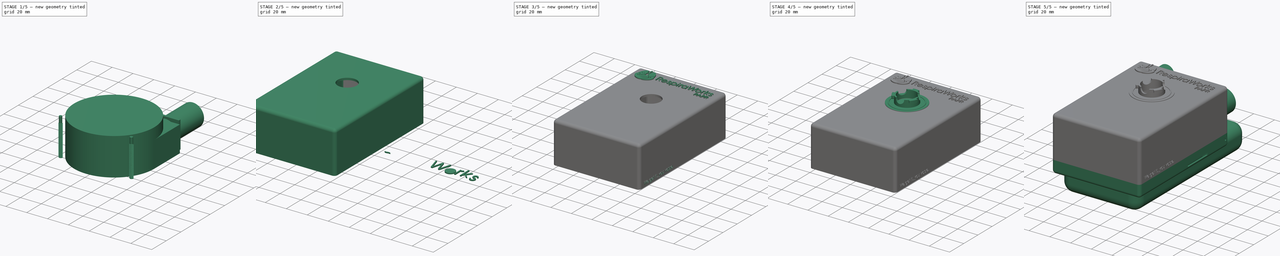
[diagram: build sequence overview — one tinted view per stage of 5, left to right]
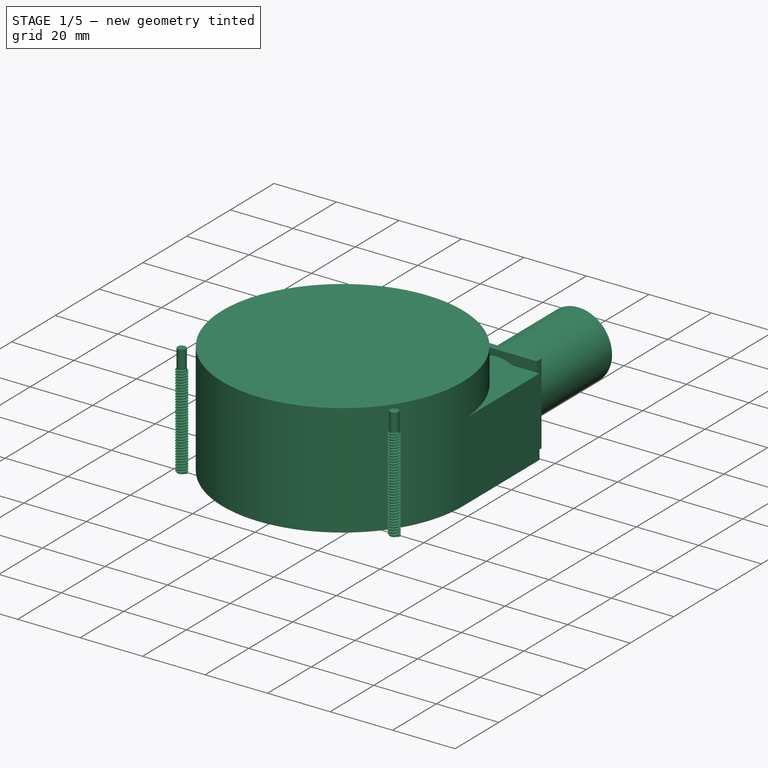
[diagram: stage 1 of 5 — iso view after this stage's code; geometry added in this stage tinted green]
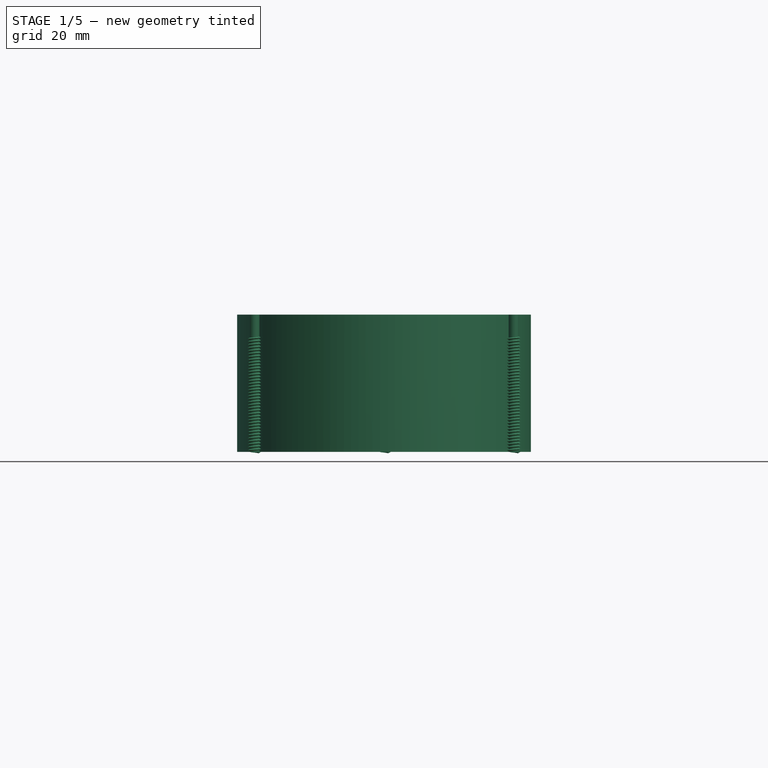
[diagram: stage 1 of 5 — front view after this stage's code; geometry added in this stage tinted green]
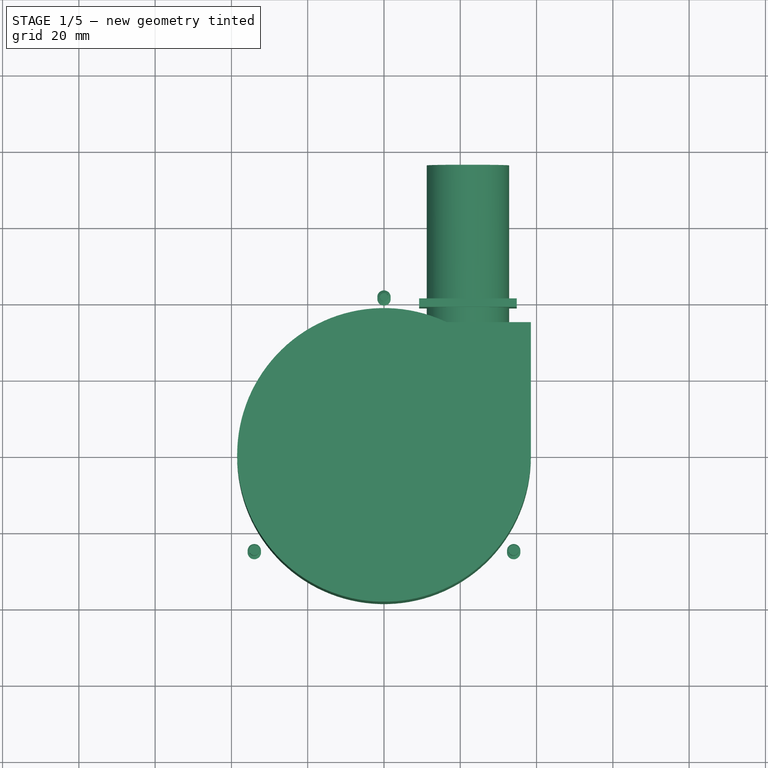
[diagram: stage 1 of 5 — top view after this stage's code; geometry added in this stage tinted green]
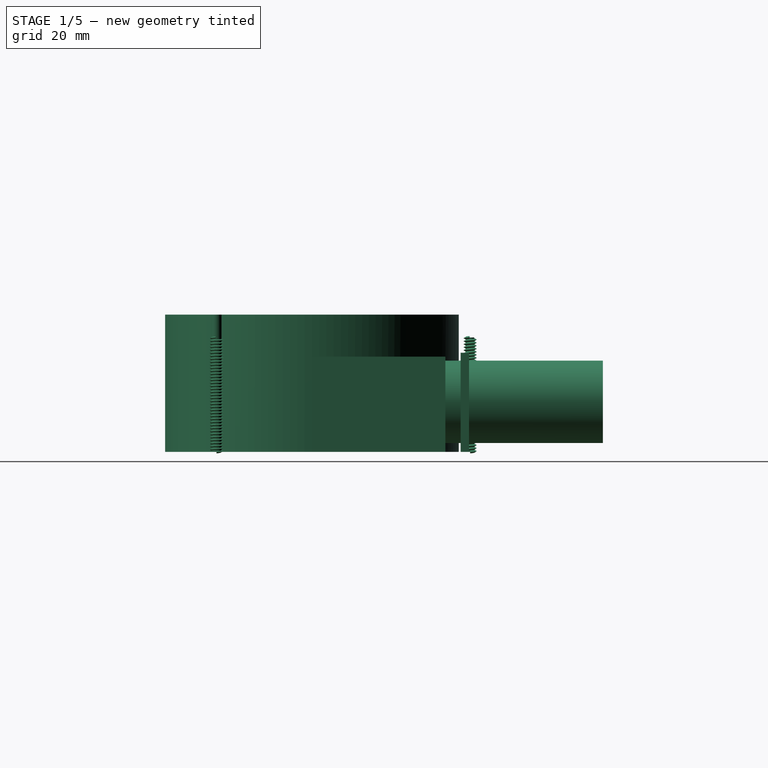
[diagram: stage 1 of 5 — right view after this stage's code; geometry added in this stage tinted green]
FCSTD DOCUMENT  (FreeCAD 0.18R4 (GitTag))
Label: PAPR-MAIN-V7
License: All rights reserved
LicenseURL: http://en.wikipedia.org/wiki/All_rights_reserved
objects: Part::Extrusion×36, Part::Cylinder×35, Part::Feature×29, Part::MultiFuse×25, Part::Fillet×17, Part::Box×14, Sketcher::SketchObject×11, Part::Cut×11, Part::Mirroring×6, Part::Revolution×4, Part::Cone×3, Part::Part2DObjectPython×3, Part::FeaturePython×3, Part::Helix×3, Part::Sweep×3
note: 203 computed .brp shape members not serialized (recipe doc carries the construction recipe); baked Part::Feature solids carry a one-line shape summary decoded from their .brp

FEATURE [Part::Cone] Cone003  label="BlowerInlet002"
  Angle = 360
  AttacherType = Attacher::AttachEngine3D
  Height = 13
  Placement = pos=(0,0,22.5) rot=(0,0,1;0rad)
  Radius1 = 27.25
  Radius2 = 27.15
FEATURE [Part::Cylinder] Cylinder039  label="BlowerBody001"
  Angle = 360
  AttacherType = Attacher::AttachEngine3D
  Height = 18
  Placement = pos=(0,0,4.5) rot=(0,0,1;0rad)
  Radius = 35
FEATURE [Part::Cylinder] Cylinder040  label="BlowerEndbearing001"
  Angle = 360
  AttacherType = Attacher::AttachEngine3D
  Height = 5
  Placement = pos=(0,0,1) rot=(0,0,1;0rad)
  Radius = 2.25
FEATURE [Part::Cylinder] Cylinder041
  Angle = 360
  AttacherType = Attacher::AttachEngine3D
  Height = 10
  Placement = pos=(0,-28.4,0) rot=(0,0,1;0rad)
  Radius = 2
FEATURE [Part::FeaturePython] Array004  label="BlowerFeet001"  # Draft array (typed FeaturePython)
  Angle = 360
  ArrayType = 1
  Axis = (0,0,1)
  Base = -> Cylinder041
  Center = (0,0,0)
  Fuse = false
  IntervalAxis = (0,0,0)
  IntervalX = (1,0,0)
  IntervalY = (0,1,0)
  IntervalZ = (0,0,1)
  NumberPolar = 3
  NumberX = 1
  NumberY = 1
  NumberZ = 1
FEATURE [Part::Cylinder] Cylinder042  label="BlowerOutlet001"
  Angle = 360
  AttacherType = Attacher::AttachEngine3D
  Height = 80
  Placement = pos=(22,76.3,13.15) rot=(1,0,0;1.5708rad)
  Radius = 10.8
FEATURE [Part::Cylinder] Cylinder043  label="BlowerBodyEnvelope001"
  Angle = 360
  AttacherType = Attacher::AttachEngine3D
  Height = 36
  Radius = 38.5
FEATURE [Part::Box] Box017  label="OutletPocket004"
  AttacherType = Attacher::AttachEngine3D
  Height = 25
  Length = 23.5
  Placement = pos=(15,0,0) rot=(0,0,1;0rad)
  Width = 35
FEATURE [Part::Cylinder] Cylinder046  label="BodyScrewHole3"
  Angle = 360
  AttacherType = Attacher::AttachEngine3D
  Height = 36
  Placement = pos=(-34,-25,0) rot=(0,0,1;0rad)
  Radius = 1.35
FEATURE [Part::Cylinder] Cylinder045  label="BodyScrewHole2"
  Angle = 360
  AttacherType = Attacher::AttachEngine3D
  Height = 36
  Placement = pos=(34,-25,0) rot=(0,0,1;0rad)
  Radius = 1.35
FEATURE [Part::Helix] Helix
  Angle = 0
  AttacherType = Attacher::AttachEngine3D
  Height = 30
  LocalCoord = 0
  Pitch = 0.79
  Radius = 1.7526
  Style = 1
FEATURE [Sketcher::SketchObject] Sketch004
  Placement = pos=(0,0,0) rot=(1,0,0;1.5708rad)
  sketch-geometry (4):
    g0: LineSegment StartX=1.08576 StartY=-0.385 StartZ=0 EndX=1.7526 EndY=0 EndZ=0
    g1: LineSegment StartX=1.7526 StartY=0 StartZ=0 EndX=1.08576 EndY=0.385 EndZ=0
    g2: LineSegment StartX=1.08576 StartY=0.385 StartZ=0 EndX=1.08576 EndY=-0.385 EndZ=0
    g3: Circle [constr] CenterX=1.30804 CenterY=7.64e-14 CenterZ=0 NormalX=0 NormalY=0 NormalZ=1 AngleXU=0 Radius=0.44456
  constraints (12):
    c: Coincident(g0,g1)
    c: Coincident(g1,g2)
    c: Coincident(g2,g0)
    c: Equal(g0,g1)
    c: Equal(g0,g2)
    c: PointOnObject(g0,g3)
    c: PointOnObject(g1,g3)
    c: PointOnObject(g2,g3)
    c: Parallel(g2,g-2)
    c: PointOnObject(g0,g-1)
    c: DistanceX(g-1,g0) = 1.7526
    c: DistanceY(g0,g1) = 0.77
FEATURE [Part::Cylinder] Cylinder049  label="Cylinder042"
  Angle = 360
  AttacherType = Attacher::AttachEngine3D
  Height = 30
  Radius = 1.07
FEATURE [Part::Sweep] Sweep  label="6-32Thread"
  Frenet = true
  Sections = -> [Sketch004]
  Solid = true
  Spine = -> Helix [Edge38,Edge37,Edge36,Edge35,Edge34,Edge33,Edge32,Edge31,Edge30,Edge29,Edge28,Edge27,Edge26,Edge25,Edge24,Edge23,Edge22,Edge21,Edge20,Edge19,Edge18,Edge17,Edge16,Edge15,Edge14,Edge13,Edge12,Edge11,Edge10,Edge9,Edge8,Edge7,Edge6,Edge5,Edge4,Edge3,Edge2,Edge1]
  Transition = 1
FEATURE [Part::MultiFuse] Fusion042  label="Threads1"
  Placement = pos=(0,41.5,0) rot=(0,0,1;0rad)
  Shapes = -> [Cylinder049,Sweep]
FEATURE [Sketcher::SketchObject] Sketch005
  Placement = pos=(0,0,0) rot=(1,0,0;1.5708rad)
  sketch-geometry (4):
    g0: LineSegment StartX=1.08576 StartY=-0.385 StartZ=0 EndX=1.7526 EndY=0 EndZ=0
    g1: LineSegment StartX=1.7526 StartY=0 StartZ=0 EndX=1.08576 EndY=0.385 EndZ=0
    g2: LineSegment StartX=1.08576 StartY=0.385 StartZ=0 EndX=1.08576 EndY=-0.385 EndZ=0
    g3: Circle [constr] CenterX=1.30804 CenterY=7.64e-14 CenterZ=0 NormalX=0 NormalY=0 NormalZ=1 AngleXU=0 Radius=0.44456
  constraints (12):
    c: Coincident(g0,g1)
    c: Coincident(g1,g2)
    c: Coincident(g2,g0)
    c: Equal(g0,g1)
    c: Equal(g0,g2)
    c: PointOnObject(g0,g3)
    c: PointOnObject(g1,g3)
    c: PointOnObject(g2,g3)
    c: Parallel(g2,g-2)
    c: PointOnObject(g0,g-1)
    c: DistanceX(g-1,g0) = 1.7526
    c: DistanceY(g0,g1) = 0.77
FEATURE [Part::Cylinder] Cylinder050  label="Cylinder043"
  Angle = 360
  AttacherType = Attacher::AttachEngine3D
  Height = 30
  Radius = 1.07
FEATURE [Part::Helix] Helix001
  Angle = 0
  AttacherType = Attacher::AttachEngine3D
  Height = 30
  LocalCoord = 0
  Pitch = 0.79
  Radius = 1.7526
  Style = 1
FEATURE [Part::Sweep] Sweep001  label="6-32Thread001"
  Frenet = true
  Sections = -> [Sketch005]
  Solid = true
  Spine = -> Helix001 [Edge38,Edge37,Edge36,Edge35,Edge34,Edge33,Edge32,Edge31,Edge30,Edge29,Edge28,Edge27,Edge26,Edge25,Edge24,Edge23,Edge22,Edge21,Edge20,Edge19,Edge18,Edge17,Edge16,Edge15,Edge14,Edge13,Edge12,Edge11,Edge10,Edge9,Edge8,Edge7,Edge6,Edge5,Edge4,Edge3,Edge2,Edge1]
  Transition = 1
FEATURE [Part::MultiFuse] Fusion043  label="Threads2"
  Placement = pos=(34,-25,0) rot=(0,0,1;0rad)
  Shapes = -> [Cylinder050,Sweep001]
FEATURE [Part::Cylinder] Cylinder051  label="Cylinder044"
  Angle = 360
  AttacherType = Attacher::AttachEngine3D
  Height = 30
  Radius = 1.07
FEATURE [Sketcher::SketchObject] Sketch006
  Placement = pos=(0,0,0) rot=(1,0,0;1.5708rad)
  sketch-geometry (4):
    g0: LineSegment StartX=1.08576 StartY=-0.385 StartZ=0 EndX=1.7526 EndY=0 EndZ=0
    g1: LineSegment StartX=1.7526 StartY=0 StartZ=0 EndX=1.08576 EndY=0.385 EndZ=0
    g2: LineSegment StartX=1.08576 StartY=0.385 StartZ=0 EndX=1.08576 EndY=-0.385 EndZ=0
    g3: Circle [constr] CenterX=1.30804 CenterY=7.64e-14 CenterZ=0 NormalX=0 NormalY=0 NormalZ=1 AngleXU=0 Radius=0.44456
  constraints (12):
    c: Coincident(g0,g1)
    c: Coincident(g1,g2)
    c: Coincident(g2,g0)
    c: Equal(g0,g1)
    c: Equal(g0,g2)
    c: PointOnObject(g0,g3)
    c: PointOnObject(g1,g3)
    c: PointOnObject(g2,g3)
    c: Parallel(g2,g-2)
    c: PointOnObject(g0,g-1)
    c: DistanceX(g-1,g0) = 1.7526
    c: DistanceY(g0,g1) = 0.77
FEATURE [Part::Helix] Helix002
  Angle = 0
  AttacherType = Attacher::AttachEngine3D
  Height = 30
  LocalCoord = 0
  Pitch = 0.79
  Radius = 1.7526
  Style = 1
FEATURE [Part::Sweep] Sweep002  label="6-32Thread002"
  Frenet = true
  Sections = -> [Sketch006]
  Solid = true
  Spine = -> Helix002 [Edge38,Edge37,Edge36,Edge35,Edge34,Edge33,Edge32,Edge31,Edge30,Edge29,Edge28,Edge27,Edge26,Edge25,Edge24,Edge23,Edge22,Edge21,Edge20,Edge19,Edge18,Edge17,Edge16,Edge15,Edge14,Edge13,Edge12,Edge11,Edge10,Edge9,Edge8,Edge7,Edge6,Edge5,Edge4,Edge3,Edge2,Edge1]
  Transition = 1
FEATURE [Part::MultiFuse] Fusion044  label="Threads3"
  Placement = pos=(-34,-25,0) rot=(0,0,1;0rad)
  Shapes = -> [Cylinder051,Sweep002]
FEATURE [Part::MultiFuse] Fusion045  label="BodyPocket-ThreadsCombined"
  Shapes = -> [Fusion042,Fusion043,Fusion044]
FEATURE [Part::MultiFuse] Fusion055  label="BodyPocket-Blower"
  Shapes = -> [Array004,Cylinder040,Cylinder043,Box017,Cylinder039,Cylinder042,Cone003]
FEATURE [Part::Box] Box  label="BodyOutletLockPocket"
  AttacherType = Attacher::AttachEngine3D
  Height = 26
  Length = 25.6
  Placement = pos=(9.2,39,0) rot=(0,0,1;0rad)
  Width = 2.2
FEATURE [Part::Box] Box024  label="pOutletKey"
  AttacherType = Attacher::AttachEngine3D
  Height = 26
  Length = 25.5
  Placement = pos=(-12.75,0,-13.15) rot=(0,0,1;0rad)
  Width = 2
FEATURE [Part::Cylinder] Cylinder063  label="nOutletKeyCylinder"
  Angle = 360
  AttacherType = Attacher::AttachEngine3D
  Height = 2
  Placement = pos=(0,0,0) rot=(-1,0,0;1.5708rad)
  Radius = 8.8
FEATURE [Part::Box] Box025  label="nOutletKeyRect"
  AttacherType = Attacher::AttachEngine3D
  Height = 12.85
  Length = 17.6
  Placement = pos=(-8.8,0,0) rot=(0,0,1;0rad)
  Width = 2
FEATURE [Part::Box] Box026  label="nOutletKeyNotch"
  AttacherType = Attacher::AttachEngine3D
  Height = 4
  Length = 2
  Placement = pos=(-12.75,0,-13.15) rot=(0,1,0;0.785398rad)
  Width = 2
FEATURE [Part::Mirroring] Part__Mirroring006  label="nOutletKeyNotch2"
  Base = (0,0,0)
  Normal = (1,0,0)
  Source = -> Box026
FEATURE [Part::Box] Box027  label="nOutletKeyNotch1"
  AttacherType = Attacher::AttachEngine3D
  Height = 4
  Length = 2
  Placement = pos=(-12.75,0,-13.15) rot=(0,1,0;0.785398rad)
  Width = 2
FEATURE [Part::MultiFuse] Fusion062  label="nOutletKey"
  Shapes = -> [Cylinder063,Part__Mirroring006,Box027,Box025]
FEATURE [Part::Cut] Cut021  label="OutletKeyMinusFillet"
  Base = -> Box024
  Tool = -> Fusion062
FEATURE [Part::Fillet] Fillet  label="TopLevelPart-OutletKey"
  Base = -> Cut021
  Edges = 19 edges r=0.25: [Edge1,Edge2,Edge3,Edge8,Edge12,Edge13,Edge14,Edge15,Edge16,Edge17,Edge18,Edge19,Edge23,Edge28,Edge29,Edge30,Edge31,Edge39,Edge40]
  Placement = pos=(22,39.1,13.15) rot=(0,0,1;0rad)
note: 3 file-system paths scrubbed to <path> (originals preserved in the JSON sidecar)
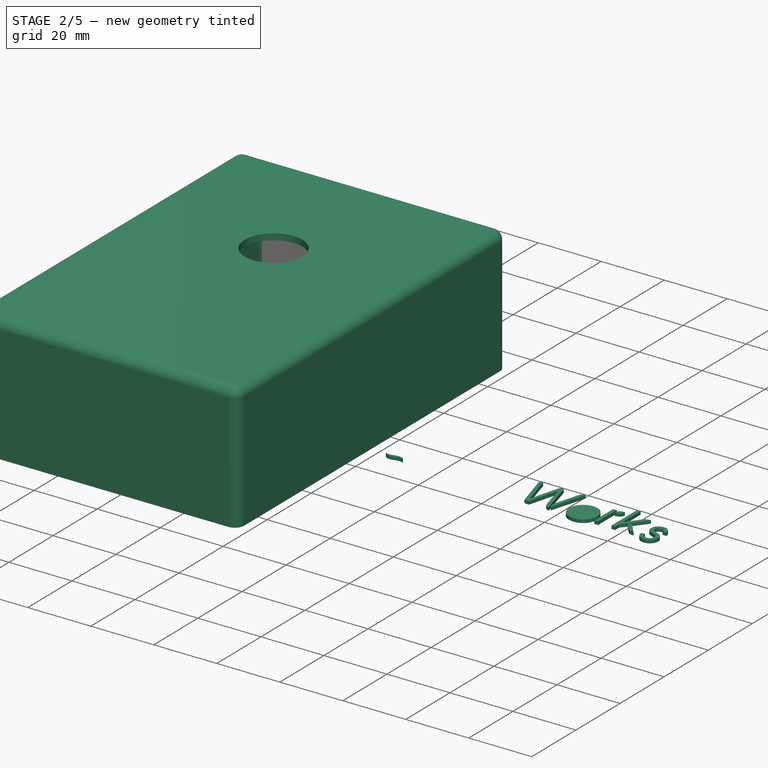
[diagram: stage 2 of 5 — iso view after this stage's code; geometry added in this stage tinted green]
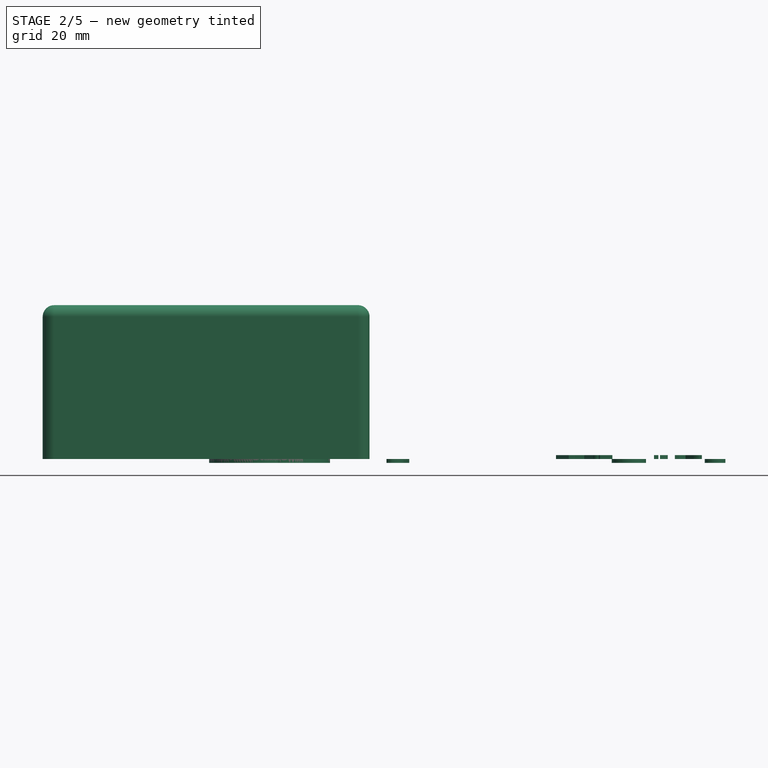
[diagram: stage 2 of 5 — front view after this stage's code; geometry added in this stage tinted green]
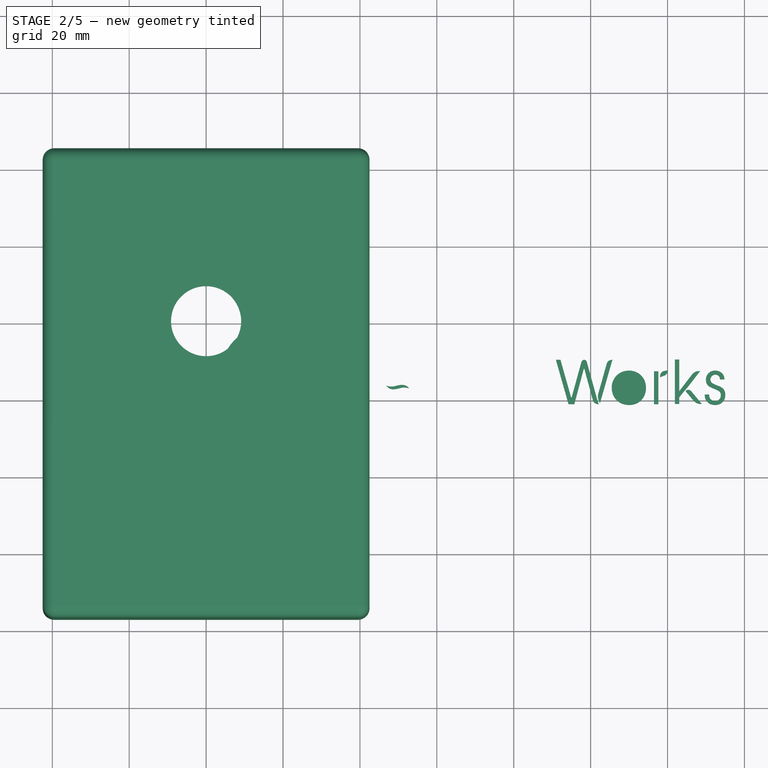
[diagram: stage 2 of 5 — top view after this stage's code; geometry added in this stage tinted green]
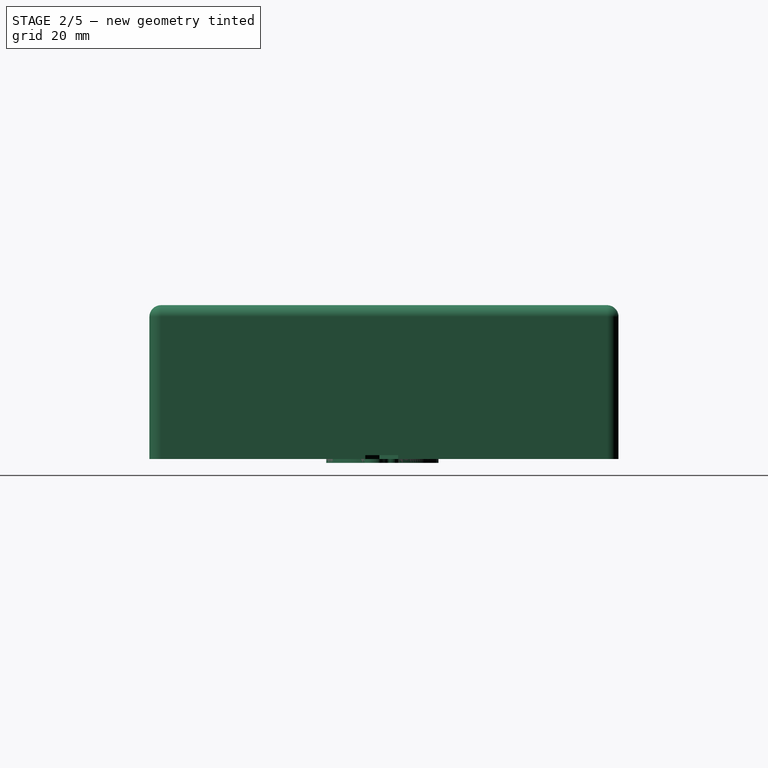
[diagram: stage 2 of 5 — right view after this stage's code; geometry added in this stage tinted green]
FEATURE [Part::Box] Box011  label="BodyBlock"
  AttacherType = Attacher::AttachEngine3D
  Height = 40
  Length = 85
  Placement = pos=(-42.5,-77,0) rot=(0,0,1;0rad)
  Width = 122
FEATURE [Part::Fillet] Fillet003  label="pBody"
  Base = -> Box011
  Edges = 8 edges r=3: [Edge1,Edge2,Edge3,Edge5,Edge6,Edge7,Edge10,Edge12]
FEATURE [Part::Cylinder] Cylinder024  label="BodyScrewHole1"
  Angle = 360
  AttacherType = Attacher::AttachEngine3D
  Height = 36
  Placement = pos=(0,41.5,0) rot=(0,0,1;0rad)
  Radius = 1.35
FEATURE [Part::Cylinder] Cylinder032  label="BodyPocket-BlowerBody"
  Angle = 360
  AttacherType = Attacher::AttachEngine3D
  Height = 18
  Placement = pos=(0,0,20) rot=(0,0,1;0rad)
  Radius = 29.75
FEATURE [Part::Cylinder] Cylinder034  label="BodyPocket-Downpipe"
  Angle = 360
  AttacherType = Attacher::AttachEngine3D
  Height = 10
  Placement = pos=(0,0,38) rot=(0,0,1;0rad)
  Radius = 9.12
FEATURE [Part::Box] Box012  label="WiringPocket001"
  AttacherType = Attacher::AttachEngine3D
  Height = 36
  Length = 77
  Placement = pos=(-38.5,-73,0) rot=(0,0,1;0rad)
  Width = 40
FEATURE [Part::Fillet] Fillet015  label="BodyPocket-Electrical"
  Base = -> Box012
  Edges = 2 edges r=5: [Edge1,Edge5]
FEATURE [Part::Box] Box013  label="PotBody"
  AttacherType = Attacher::AttachEngine3D
  Height = 36
  Length = 10.5
  Placement = pos=(-5.25,0,0) rot=(0,0,1;0rad)
  Width = 45
FEATURE [Part::Cylinder] Cylinder044  label="PotShaft"
  Angle = 360
  AttacherType = Attacher::AttachEngine3D
  Height = 10
  Placement = pos=(0,55,25) rot=(1,0,0;1.5708rad)
  Radius = 3.65
FEATURE [Part::MultiFuse] Fusion031  label="BodyPocket-Pot"
  Placement = pos=(-29.75,-2,0) rot=(0,0,1;0rad)
  Shapes = -> [Cylinder044,Box013]
FEATURE [Part::Box] Box016  label="BodyPocket-PowerWire"
  AttacherType = Attacher::AttachEngine3D
  Height = 4.5
  Length = 4.5
  Placement = pos=(-14,25,0) rot=(0,0,1;0rad)
  Width = 20
FEATURE [Part::MultiFuse] Fusion056  label="nBody"
  Shapes = -> [Fusion031,Cylinder032,Cylinder024,Fusion045,Cylinder045,Cylinder034,Cylinder046,Box016,Fillet015,Fusion055,Box]
FEATURE [Part::Feature] Face020
  shape: bbox 13.56 x 15.09 x 2e-07 mm, 1 faces, 0 solids (baked)
FEATURE [Part::Extrusion] Extrude020  label="p-m-RightHand"
  Base = -> Face020
  Dir = (0,0,-1)
  DirMode = 2
  FaceMakerClass = Part::FaceMakerBullseye
  LengthFwd = 1
  LengthRev = 0
  Solid = false
  Symmetric = false
FEATURE [Part::Feature] Face010
  shape: bbox 5.363 x 9.106 x 2e-07 mm, 1 faces, 0 solids (baked)
FEATURE [Part::Extrusion] Extrude010  label="p-m-s2"
  Base = -> Face010
  Dir = (0,0,-1)
  DirMode = 2
  FaceMakerClass = Part::FaceMakerBullseye
  LengthFwd = 1
  LengthRev = 0
  Solid = false
  Symmetric = false
FEATURE [Part::Feature] Face008
  shape: bbox 5.94 x 1.154 x 2e-07 mm, 1 faces, 0 solids (baked)
FEATURE [Part::Extrusion] Extrude008  label="p-m-e-2"
  Base = -> Face008
  Dir = (0,0,-1)
  DirMode = 2
  FaceMakerClass = Part::FaceMakerBullseye
  LengthFwd = 1
  LengthRev = 0
  Solid = false
  Symmetric = false
FEATURE [Part::Feature] Face014
  shape: bbox 1.159 x 8.554 x 2e-07 mm, 1 faces, 0 solids (baked)
FEATURE [Part::Extrusion] Extrude014  label="p-r2-1"
  Base = -> Face014
  Dir = (0,0,1)
  DirMode = 2
  FaceMakerClass = Part::FaceMakerBullseye
  LengthFwd = 1
  LengthRev = 0
  Solid = false
  Symmetric = false
FEATURE [Part::Feature] Face012
  shape: bbox 8.927 x 8.959 x 2e-07 mm, 1 faces, 0 solids (baked)
FEATURE [Part::Extrusion] Extrude012  label="p-m-o"
  Base = -> Face012
  Dir = (0,0,-1)
  DirMode = 2
  FaceMakerClass = Part::FaceMakerBullseye
  LengthFwd = 1
  LengthRev = 0
  Solid = false
  Symmetric = false
FEATURE [Part::Feature] Face016
  shape: bbox 4.239 x 3.757 x 2e-07 mm, 1 faces, 0 solids (baked)
FEATURE [Part::Extrusion] Extrude016  label="p-k-2"
  Base = -> Face016
  Dir = (0,0,1)
  DirMode = 2
  FaceMakerClass = Part::FaceMakerBullseye
  LengthFwd = 1
  LengthRev = 0
  Solid = false
  Symmetric = false
FEATURE [Part::Feature] Face013
  shape: bbox 1.995 x 1.775 x 2e-07 mm, 1 faces, 0 solids (baked)
FEATURE [Part::Extrusion] Extrude013  label="p-r2-2"
  Base = -> Face013
  Dir = (0,0,1)
  DirMode = 2
  FaceMakerClass = Part::FaceMakerBullseye
  LengthFwd = 1
  LengthRev = 0
  Solid = false
  Symmetric = false
FEATURE [Part::Feature] Face015
  shape: bbox 6.567 x 11.56 x 2e-07 mm, 1 faces, 0 solids (baked)
FEATURE [Part::Extrusion] Extrude015  label="p-k-1"
  Base = -> Face015
  Dir = (0,0,1)
  DirMode = 2
  FaceMakerClass = Part::FaceMakerBullseye
  LengthFwd = 1
  LengthRev = 0
  Solid = false
  Symmetric = false
FEATURE [Part::Feature] Face017
  shape: bbox 3.769 x 11.29 x 2e-07 mm, 1 faces, 0 solids (baked)
FEATURE [Part::Extrusion] Extrude017  label="p-W-2"
  Base = -> Face017
  Dir = (0,0,1)
  DirMode = 2
  FaceMakerClass = Part::FaceMakerBullseye
  LengthFwd = 1
  LengthRev = 0
  Solid = false
  Symmetric = false
FEATURE [Part::Feature] Face018
  shape: bbox 11.13 x 11.6 x 2e-07 mm, 1 faces, 0 solids (baked)
FEATURE [Part::Extrusion] Extrude018  label="p-W-1"
  Base = -> Face018
  Dir = (0,0,1)
  DirMode = 2
  FaceMakerClass = Part::FaceMakerBullseye
  LengthFwd = 1
  LengthRev = 0
  Solid = false
  Symmetric = false
FEATURE [Part::Feature] Face019
  shape: bbox 23.98 x 15.22 x 2e-07 mm, 1 faces, 0 solids (baked)
FEATURE [Part::Extrusion] Extrude019  label="p-m-LeftHand"
  Base = -> Face019
  Dir = (0,0,-1)
  DirMode = 2
  FaceMakerClass = Part::FaceMakerBullseye
  LengthFwd = 1
  LengthRev = 0
  Solid = false
  Symmetric = false
FEATURE [Part::Feature] Face021
  shape: bbox 2.22 x 2.625 x 2e-07 mm, 1 faces, 0 solids (baked)
FEATURE [Part::Extrusion] Extrude021  label="p-m-LeftFinger"
  Base = -> Face021
  Dir = (0,0,-1)
  DirMode = 2
  FaceMakerClass = Part::FaceMakerBullseye
  LengthFwd = 1
  LengthRev = 0
  Solid = false
  Symmetric = false
FEATURE [Part::Feature] Face022
  shape: bbox 2.744 x 2.564 x 2e-07 mm, 1 faces, 0 solids (baked)
FEATURE [Part::Extrusion] Extrude022  label="p-m-RightFinger"
  Base = -> Face022
  Dir = (0,0,-1)
  DirMode = 2
  FaceMakerClass = Part::FaceMakerBullseye
  LengthFwd = 1
  LengthRev = 0
  Solid = false
  Symmetric = false
FEATURE [Part::Feature] Face027
  shape: bbox 3.153 x 1.741 x 2e-07 mm, 1 faces, 0 solids (baked)
FEATURE [Part::Extrusion] Extrude027  label="n-m-LeftEye"
  Base = -> Face027
  Dir = (0,0,-1)
  DirMode = 2
  FaceMakerClass = Part::FaceMakerBullseye
  LengthFwd = 1
  LengthRev = 0
  Solid = false
  Symmetric = false
FEATURE [Part::Feature] Face028
  shape: bbox 12.09 x 20.21 x 2e-07 mm, 1 faces, 0 solids (baked)
FEATURE [Part::Extrusion] Extrude028  label="p-LeftLung"
  Base = -> Face028
  Dir = (0,0,1)
  DirMode = 2
  FaceMakerClass = Part::FaceMakerBullseye
  LengthFwd = 1
  LengthRev = 0
  Solid = false
  Symmetric = false
FEATURE [Part::Feature] Face023
  shape: bbox 4.011 x 10.85 x 2e-07 mm, 1 faces, 0 solids (baked)
FEATURE [Part::Extrusion] Extrude023  label="p-Trachea"
  Base = -> Face023
  Dir = (0,0,1)
  DirMode = 2
  FaceMakerClass = Part::FaceMakerBullseye
  LengthFwd = 1
  LengthRev = 0
  Solid = false
  Symmetric = false
FEATURE [Part::Feature] Face025
  shape: bbox 3.134 x 1.688 x 2e-07 mm, 1 faces, 0 solids (baked)
FEATURE [Part::Extrusion] Extrude025  label="n-m-RightEye"
  Base = -> Face025
  Dir = (0,0,-1)
  DirMode = 2
  FaceMakerClass = Part::FaceMakerBullseye
  LengthFwd = 1
  LengthRev = 0
  Solid = false
  Symmetric = false
FEATURE [Part::Feature] Face026
  shape: bbox 1.76 x 1.081 x 2e-07 mm, 1 faces, 0 solids (baked)
FEATURE [Part::Extrusion] Extrude026  label="n-m-Mouth"
  Base = -> Face026
  Dir = (0,0,-1)
  DirMode = 2
  FaceMakerClass = Part::FaceMakerBullseye
  LengthFwd = 1
  LengthRev = 0
  Solid = false
  Symmetric = false
FEATURE [Part::Feature] Face024
  shape: bbox 12.13 x 20.08 x 2e-07 mm, 1 faces, 0 solids (baked)
FEATURE [Part::Extrusion] Extrude024  label="p-m-RightLung"
  Base = -> Face024
  Dir = (0,0,-1)
  DirMode = 2
  FaceMakerClass = Part::FaceMakerBullseye
  LengthFwd = 1
  LengthRev = 0
  Solid = false
  Symmetric = false
FEATURE [Part::Cut] Cut020  label="BodyMinusInletAndText"
  Base = -> Fillet003
  Tool = -> Fusion056
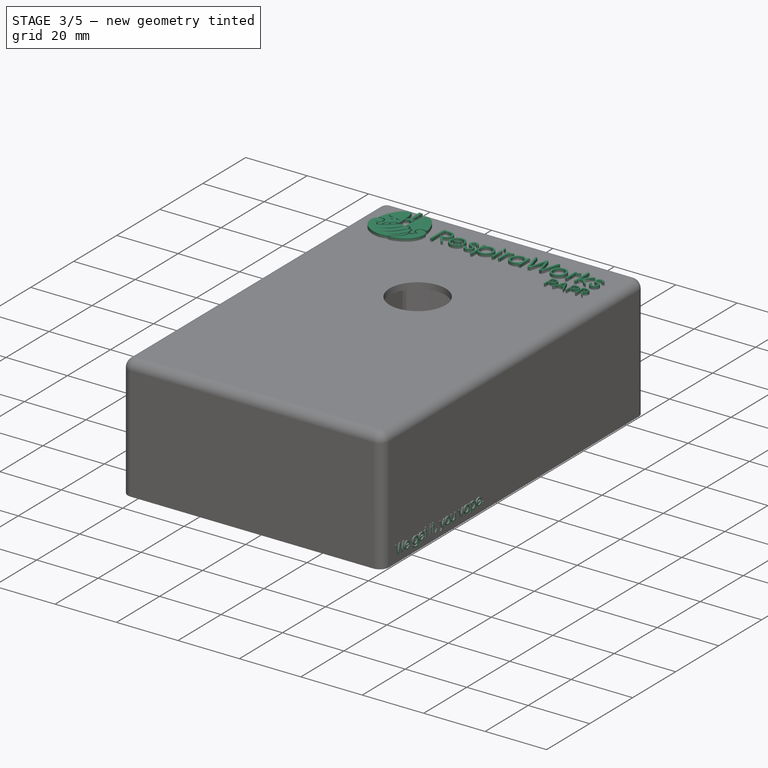
[diagram: stage 3 of 5 — iso view after this stage's code; geometry added in this stage tinted green]
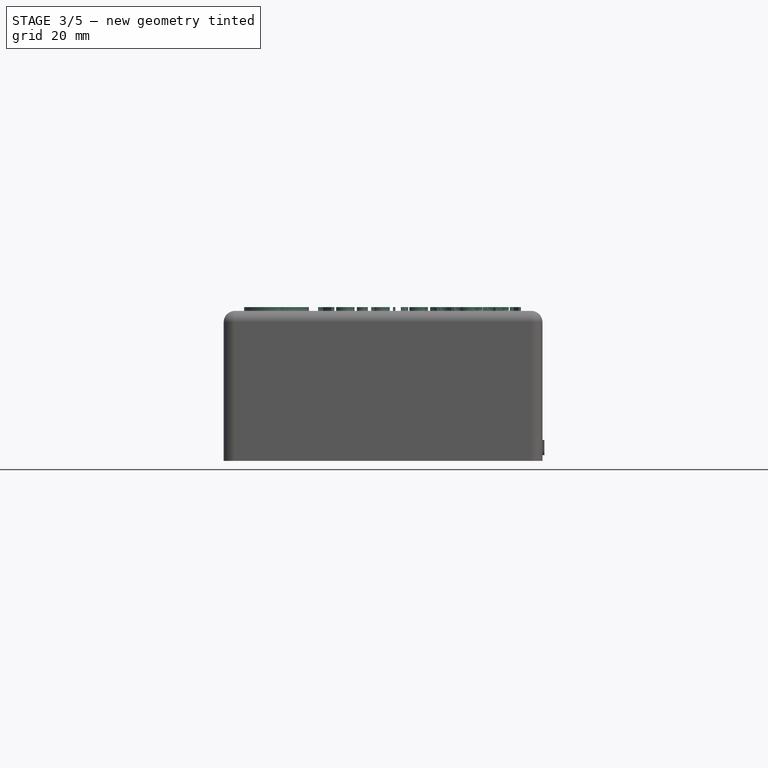
[diagram: stage 3 of 5 — front view after this stage's code; geometry added in this stage tinted green]
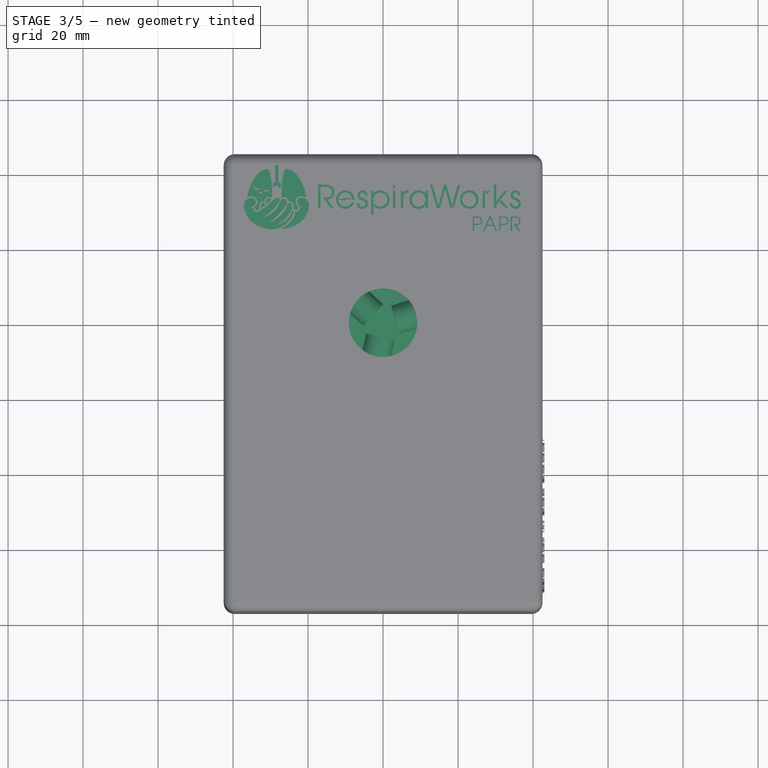
[diagram: stage 3 of 5 — top view after this stage's code; geometry added in this stage tinted green]
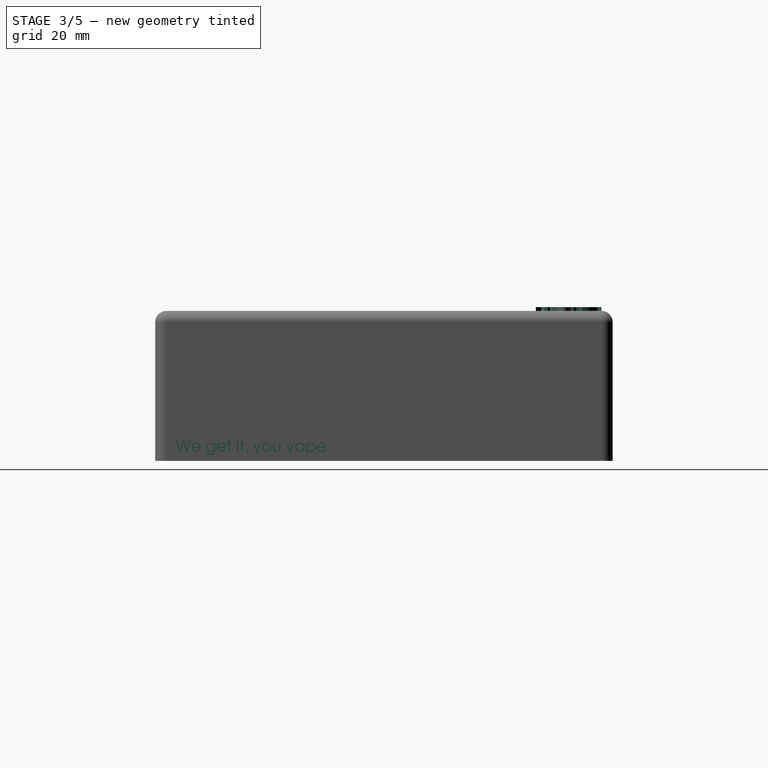
[diagram: stage 3 of 5 — right view after this stage's code; geometry added in this stage tinted green]
FEATURE [Part::Part2DObjectPython] ShapeString  # Draft 2D object (typed FeaturePython)
  FontFile = <path>
  Size = 5
  String = V2
  Tracking = 0
FEATURE [Sketcher::SketchObject] Sketch002  label="BayonetTooth001"
  Placement = pos=(0,0,0) rot=(1,0,0;1.5708rad)
  sketch-geometry (4):
    g0: LineSegment StartX=9.125 StartY=8.5 StartZ=0 EndX=12.625 EndY=8.5 EndZ=0
    g1: LineSegment StartX=12.625 StartY=8.5 StartZ=0 EndX=12.625 EndY=5.5 EndZ=0
    g2: LineSegment StartX=12.625 StartY=5.5 StartZ=0 EndX=9.125 EndY=5.5 EndZ=0
    g3: LineSegment StartX=9.125 StartY=5.5 StartZ=0 EndX=9.125 EndY=8.5 EndZ=0
  constraints (12):
    c: Coincident(g0,g1)
    c: Coincident(g1,g2)
    c: Coincident(g2,g3)
    c: Coincident(g3,g0)
    c: Horizontal(g0)
    c: Horizontal(g2)
    c: Vertical(g1)
    c: Vertical(g3)
    c: DistanceY(g1,g0) = 3
    c: DistanceX(g2,g1) = 3.5
    c: DistanceY(g-1,g0) = 8.5
    c: DistanceX(g-1,g2) = 9.125
FEATURE [Sketcher::SketchObject] Sketch003  label="BayonetTooth002"
  Placement = pos=(0,0,0) rot=(1,0,0;1.5708rad)
  sketch-geometry (4):
    g0: LineSegment StartX=9.125 StartY=8.5 StartZ=0 EndX=12.625 EndY=8.5 EndZ=0
    g1: LineSegment StartX=12.625 StartY=8.5 StartZ=0 EndX=12.625 EndY=5.5 EndZ=0
    g2: LineSegment StartX=12.625 StartY=5.5 StartZ=0 EndX=9.125 EndY=5.5 EndZ=0
    g3: LineSegment StartX=9.125 StartY=5.5 StartZ=0 EndX=9.125 EndY=8.5 EndZ=0
  constraints (12):
    c: Coincident(g0,g1)
    c: Coincident(g1,g2)
    c: Coincident(g2,g3)
    c: Coincident(g3,g0)
    c: Horizontal(g0)
    c: Horizontal(g2)
    c: Vertical(g1)
    c: Vertical(g3)
    c: DistanceY(g1,g0) = 3
    c: DistanceX(g2,g1) = 3.5
    c: DistanceY(g-1,g0) = 8.5
    c: DistanceX(g-1,g2) = 9.125
FEATURE [Sketcher::SketchObject] Sketch  label="GrooveProfile"
  Placement = pos=(0,0,0) rot=(1,0,0;1.5708rad)
  sketch-geometry (4):
    g0: LineSegment StartX=15.5 StartY=2 StartZ=0 EndX=14.5 EndY=2 EndZ=0
    g1: LineSegment StartX=14.5 StartY=2 StartZ=0 EndX=14.5 EndY=1 EndZ=0
    g2: LineSegment StartX=14.5 StartY=1 StartZ=0 EndX=15.5 EndY=1 EndZ=0
    g3: LineSegment StartX=15.5 StartY=1 StartZ=0 EndX=15.5 EndY=2 EndZ=0
  constraints (12):
    c: Coincident(g0,g1)
    c: Coincident(g1,g2)
    c: Coincident(g2,g3)
    c: Coincident(g3,g0)
    c: Horizontal(g0)
    c: Horizontal(g2)
    c: Vertical(g1)
    c: Vertical(g3)
    c: DistanceY(g1,g0) = 1
    c: Equal(g0,g1)
    c: DistanceX(g-1,g0) = 15.5
    c: DistanceY(g1,g-1) = -1
FEATURE [Sketcher::SketchObject] Sketch001  label="BayonetTooth"
  Placement = pos=(0,0,0) rot=(1,0,0;1.5708rad)
  sketch-geometry (4):
    g0: LineSegment StartX=9.125 StartY=8.5 StartZ=0 EndX=12.625 EndY=8.5 EndZ=0
    g1: LineSegment StartX=12.625 StartY=8.5 StartZ=0 EndX=12.625 EndY=5.5 EndZ=0
    g2: LineSegment StartX=12.625 StartY=5.5 StartZ=0 EndX=9.125 EndY=5.5 EndZ=0
    g3: LineSegment StartX=9.125 StartY=5.5 StartZ=0 EndX=9.125 EndY=8.5 EndZ=0
  constraints (12):
    c: Coincident(g0,g1)
    c: Coincident(g1,g2)
    c: Coincident(g2,g3)
    c: Coincident(g3,g0)
    c: Horizontal(g0)
    c: Horizontal(g2)
    c: Vertical(g1)
    c: Vertical(g3)
    c: DistanceY(g1,g0) = 3
    c: DistanceX(g2,g1) = 3.5
    c: DistanceY(g-1,g0) = 8.5
    c: DistanceX(g-1,g2) = 9.125
FEATURE [Part::Cylinder] Cylinder026
  Angle = 360
  AttacherType = Attacher::AttachEngine3D
  Height = 8.5
  Radius = 10.625
FEATURE [Part::Cylinder] Cylinder027
  Angle = 360
  AttacherType = Attacher::AttachEngine3D
  Height = 1.5
  Radius = 18
FEATURE [Part::Cylinder] Cylinder030  label="downpipe"
  Angle = 360
  AttacherType = Attacher::AttachEngine3D
  Height = 10
  Placement = pos=(0,0,13) rot=(0,0,1;0rad)
  Radius = 9.12
FEATURE [Part::Cylinder] Cylinder031  label="Cylinder029"
  Angle = 360
  AttacherType = Attacher::AttachEngine3D
  Height = 10
  Placement = pos=(3.3287,1.08156,22.1118) rot=(-0.154554,0.975821,0.154554;1.59527rad)
  Radius = 4
FEATURE [Part::FeaturePython] Array003  # Draft array (typed FeaturePython)
  Angle = 360
  ArrayType = 1
  Axis = (0,0,1)
  Base = -> Cylinder031
  Center = (0,0,0)
  Fuse = false
  IntervalAxis = (0,0,0)
  IntervalX = (1,0,0)
  IntervalY = (0,1,0)
  IntervalZ = (0,0,1)
  NumberPolar = 3
  NumberX = 1
  NumberY = 1
  NumberZ = 1
FEATURE [Part::MultiFuse] Fusion003  label="Inside"
  Shapes = -> [Cylinder030,Array003]
FEATURE [Part::Part2DObjectPython] ShapeString002  # Draft 2D object (typed FeaturePython)
  FontFile = <path>
  Size = 2
  String = We get it, you vape.
  Tracking = 0
FEATURE [Part::Extrusion] Extrude002  label="BodyText-Vape"
  Base = -> ShapeString002
  Dir = (0,0,1)
  DirMode = 2
  FaceMakerClass = Part::FaceMakerBullseye
  LengthFwd = 0.5
  LengthRev = 0
  Placement = pos=(42.5,-71.5,2.5) rot=(0.57735,0.57735,0.57735;2.0944rad)
  Solid = false
  Symmetric = false
FEATURE [Part::Part2DObjectPython] ShapeString003  # Draft 2D object (typed FeaturePython)
  FontFile = <path>
  Size = 2.5
  String = PAPR
  Tracking = 0
FEATURE [Part::Extrusion] Extrude031  label="BodyText-PAPR"
  Base = -> ShapeString003
  Dir = (0,0,1)
  DirMode = 2
  FaceMakerClass = Part::FaceMakerBullseye
  LengthFwd = 1
  LengthRev = 0
  Placement = pos=(23.5,24.5,40) rot=(0,0,1;0rad)
  Solid = false
  Symmetric = false
FEATURE [Part::Feature] Face002
  shape: bbox 9.112 x 9.183 x 2e-07 mm, 1 faces, 0 solids (baked)
FEATURE [Part::Extrusion] Extrude036  label="p-m-a"
  Base = -> Face002
  Dir = (0,0,-1)
  DirMode = 2
  FaceMakerClass = Part::FaceMakerBullseye
  LengthFwd = 1
  LengthRev = 0
  Solid = false
  Symmetric = false
FEATURE [Part::Feature] Face009
  shape: bbox 7.842 x 11.56 x 2e-07 mm, 1 faces, 0 solids (baked)
FEATURE [Part::Extrusion] Extrude009  label="p-m-R"
  Base = -> Face009
  Dir = (0,0,-1)
  DirMode = 2
  FaceMakerClass = Part::FaceMakerBullseye
  LengthFwd = 1
  LengthRev = 0
  Solid = false
  Symmetric = false
FEATURE [Part::Feature] Face
  shape: bbox 3.58 x 8.758 x 2e-07 mm, 1 faces, 0 solids (baked)
FEATURE [Part::Extrusion] Extrude037  label="p-m-r1"
  Base = -> Face
  Dir = (0,0,-1)
  DirMode = 2
  FaceMakerClass = Part::FaceMakerBullseye
  LengthFwd = 1
  LengthRev = 0
  Solid = false
  Symmetric = false
FEATURE [Part::Feature] Face005
  shape: bbox 1.156 x 1.971 x 2e-07 mm, 1 faces, 0 solids (baked)
FEATURE [Part::Extrusion] Extrude005  label="p-m-i-1"
  Base = -> Face005
  Dir = (0,0,-1)
  DirMode = 2
  FaceMakerClass = Part::FaceMakerBullseye
  LengthFwd = 1
  LengthRev = 0
  Solid = false
  Symmetric = false
FEATURE [Part::Feature] Face001
  shape: bbox 6.699 x 6.927 x 2e-07 mm, 1 faces, 0 solids (baked)
FEATURE [Part::Extrusion] Extrude001  label="n-a"
  Base = -> Face001
  Dir = (0,0,1)
  DirMode = 2
  FaceMakerClass = Part::FaceMakerBullseye
  LengthFwd = 1
  LengthRev = 0
  Solid = false
  Symmetric = false
FEATURE [Part::Feature] Face004
  shape: bbox 1.156 x 8.557 x 2e-07 mm, 1 faces, 0 solids (baked)
FEATURE [Part::Extrusion] Extrude004  label="p-m-i-2"
  Base = -> Face004
  Dir = (0,0,-1)
  DirMode = 2
  FaceMakerClass = Part::FaceMakerBullseye
  LengthFwd = 1
  LengthRev = 0
  Solid = false
  Symmetric = false
FEATURE [Part::Feature] Face003
  shape: bbox 5.342 x 8.932 x 2e-07 mm, 1 faces, 0 solids (baked)
FEATURE [Part::Extrusion] Extrude003  label="p-m-s1"
  Base = -> Face003
  Dir = (0,0,-1)
  DirMode = 2
  FaceMakerClass = Part::FaceMakerBullseye
  LengthFwd = 1
  LengthRev = 0
  Solid = false
  Symmetric = false
FEATURE [Part::MultiFuse] Fusion059  label="p-m-text"
  Shapes = -> [Extrude012,Extrude010,Extrude009,Extrude008,Extrude005,Extrude004,Extrude003,Extrude036,Extrude037]
FEATURE [Part::Mirroring] Part__Mirroring002  label="p-m-text (Mirror #3)"
  Base = (0,0,0)
  Normal = (0,0,1)
  Source = -> Fusion059
FEATURE [Part::Feature] Face006
  shape: bbox 9.051 x 12.05 x 2e-07 mm, 1 faces, 0 solids (baked)
FEATURE [Part::Extrusion] Extrude006  label="p-p"
  Base = -> Face006
  Dir = (0,0,1)
  DirMode = 2
  FaceMakerClass = Part::FaceMakerBullseye
  LengthFwd = 1
  LengthRev = 0
  Solid = false
  Symmetric = false
FEATURE [Part::Feature] Face007
  shape: bbox 9.142 x 9.001 x 2e-07 mm, 1 faces, 0 solids (baked)
FEATURE [Part::Extrusion] Extrude007  label="p-e-1"
  Base = -> Face007
  Dir = (0,0,1)
  DirMode = 2
  FaceMakerClass = Part::FaceMakerBullseye
  LengthFwd = 1
  LengthRev = 0
  Solid = false
  Symmetric = false
FEATURE [Part::MultiFuse] Fusion004  label="pText"
  Shapes = -> [Part__Mirroring002,Extrude018,Extrude017,Extrude016,Extrude015,Extrude014,Extrude013,Extrude007,Extrude006]
FEATURE [Part::Feature] Face011
  shape: bbox 6.583 x 6.832 x 2e-07 mm, 1 faces, 0 solids (baked)
FEATURE [Part::Extrusion] Extrude011  label="n-o"
  Base = -> Face011
  Dir = (0,0,1)
  DirMode = 2
  FaceMakerClass = Part::FaceMakerBullseye
  LengthFwd = 1
  LengthRev = 0
  Solid = false
  Symmetric = false
FEATURE [Part::MultiFuse] Fusion005  label="nText"
  Shapes = -> [Extrude011,Extrude001]
FEATURE [Part::Cut] Cut001  label="Text"
  Base = -> Fusion004
  Tool = -> Fusion005
FEATURE [Part::MultiFuse] Fusion060  label="n-m-Face"
  Shapes = -> [Extrude027,Extrude026,Extrude025]
FEATURE [Part::Mirroring] Part__Mirroring  label="nLogo (Mirror #1)"
  Base = (0,0,0)
  Normal = (0,0,1)
  Source = -> Fusion060
FEATURE [Part::MultiFuse] Fusion001  label="p-m-Lungs"
  Shapes = -> [Extrude024,Extrude022,Extrude021,Extrude020,Extrude019]
FEATURE [Part::Mirroring] Part__Mirroring001  label="p-m-Lungs (Mirror #2)"
  Base = (0,0,0)
  Normal = (0,0,1)
  Source = -> Fusion001
FEATURE [Part::MultiFuse] Fusion058  label="pLogo"
  Shapes = -> [Part__Mirroring001,Extrude028,Extrude023]
FEATURE [Part::Cut] Cut019  label="Logo"
  Base = -> Fusion058
  Tool = -> Part__Mirroring
FEATURE [Part::MultiFuse] Fusion006  label="RW-LogoPlusText-Extrude-1mm"
  Shapes = -> [Cut019,Cut001]
FEATURE [Part::FeaturePython] Clone  label="RW-LogoPlusText-Extrude-ScaledClone"  # Draft clone (typed FeaturePython)
  AttacherType = Attacher::AttachEngine3D
  Fuse = false
  Objects = -> [Fusion006]
  Placement = pos=(-37.5,42,40) rot=(0,0,1;0rad)
  Scale = (0.55,0.55,1)
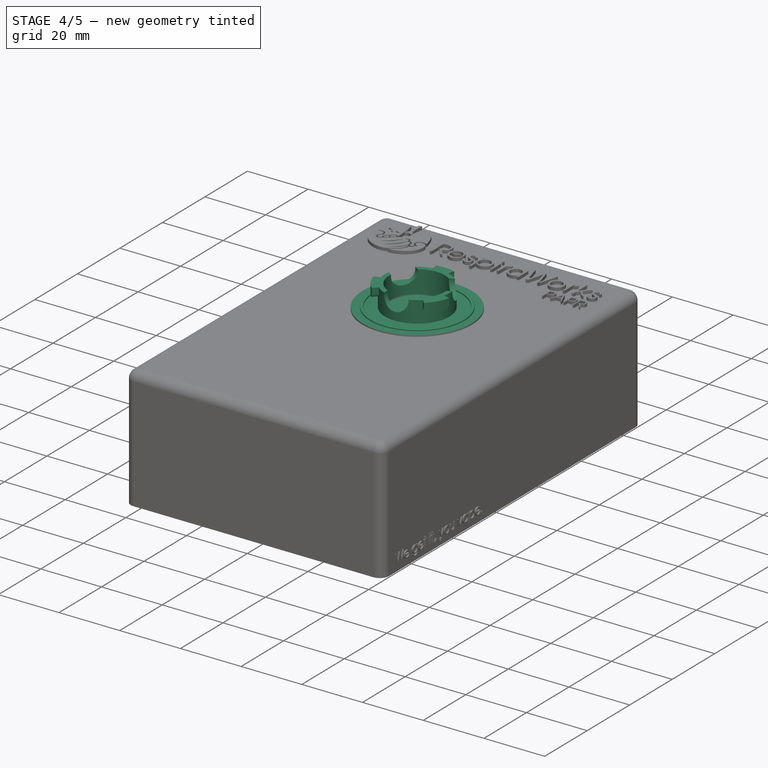
[diagram: stage 4 of 5 — iso view after this stage's code; geometry added in this stage tinted green]
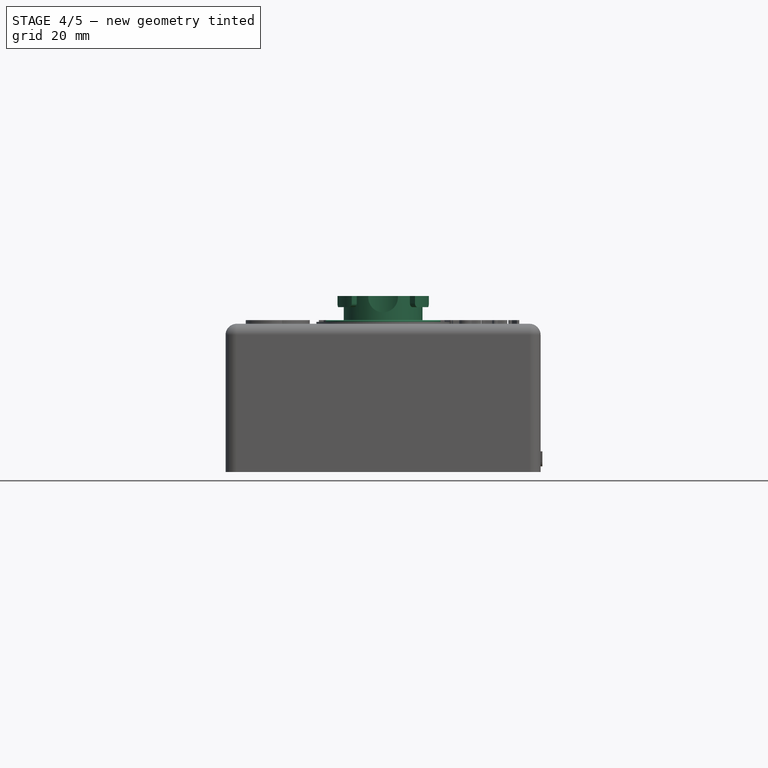
[diagram: stage 4 of 5 — front view after this stage's code; geometry added in this stage tinted green]
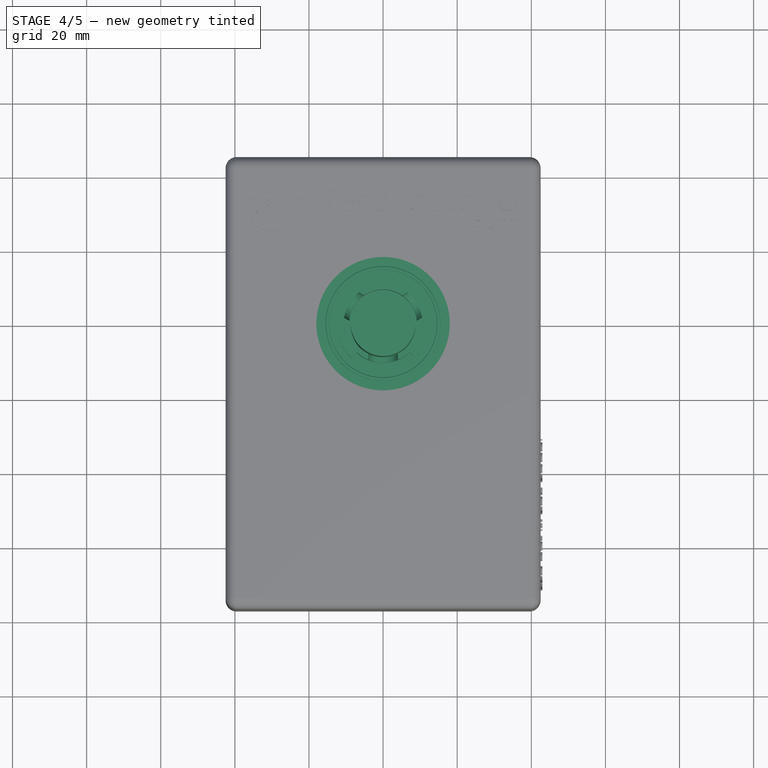
[diagram: stage 4 of 5 — top view after this stage's code; geometry added in this stage tinted green]
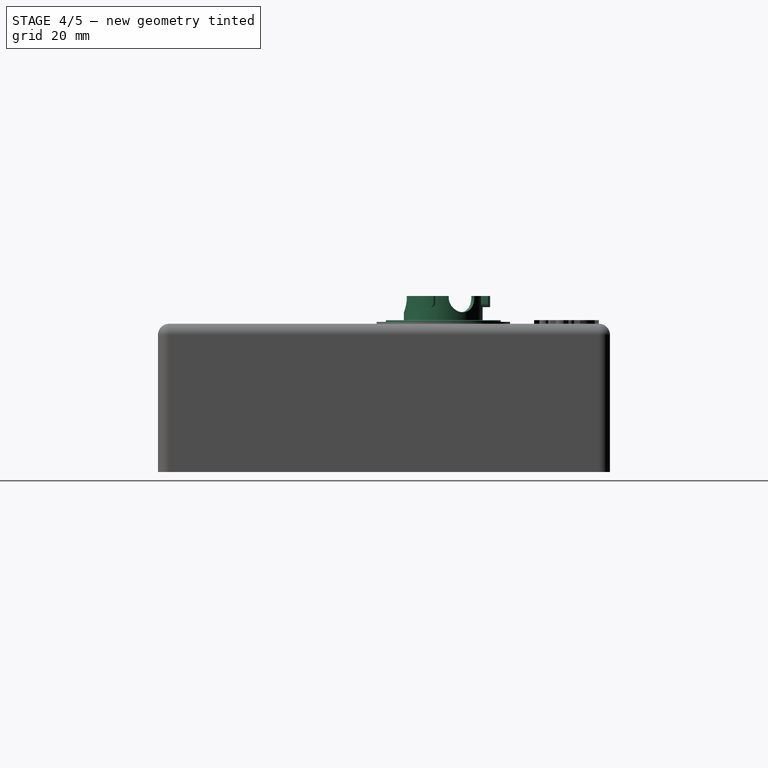
[diagram: stage 4 of 5 — right view after this stage's code; geometry added in this stage tinted green]
FEATURE [Part::Cylinder] Cylinder028
  Angle = 360
  AttacherType = Attacher::AttachEngine3D
  Height = 8.5
  Radius = 9.125
FEATURE [Part::Cylinder] Cylinder029  label="OuterBody"
  Angle = 360
  AttacherType = Attacher::AttachEngine3D
  Height = 15
  Radius = 29.75
FEATURE [Part::Revolution] Revolve003  label="LongTooth2"
  Angle = 35
  Axis = (0,0,1)
  Base = (0,0,0)
  FaceMakerClass = Part::FaceMakerBullseye
  Placement = pos=(0,0,0) rot=(0,0,1;3.15905rad)
  Solid = true
  Source = -> Sketch003
  Symmetric = false
FEATURE [Part::Fillet] Fillet010
  Base = -> Revolve003
  Edges = 1 edges r=1: [Edge10]
FEATURE [Part::Fillet] Fillet011
  Base = -> Fillet010
  Edges = 1 edges r=1: [Edge7]
FEATURE [Part::Revolution] Revolve
  Angle = 360
  Axis = (0,0,1)
  Base = (0,0,0)
  FaceMakerClass = Part::FaceMakerBullseye
  Solid = true
  Source = -> Sketch
  Symmetric = false
FEATURE [Part::Fillet] Fillet013
  Base = -> Revolve
  Edges = 1 edges r=0.25: [Edge5]
FEATURE [Part::Fillet] Fillet012
  Base = -> Fillet013
  Edges = 1 edges r=0.25: [Edge2]
FEATURE [Part::Fillet] Fillet008
  Base = -> Fillet012
  Edges = 1 edges r=0.25: [Edge10]
FEATURE [Part::Fillet] Fillet009
  Base = -> Fillet008
  Edges = 1 edges r=0.25: [Edge8]
FEATURE [Part::Revolution] Revolve001  label="LongTooth1"
  Angle = 35
  Axis = (0,0,1)
  Base = (0,0,0)
  FaceMakerClass = Part::FaceMakerBullseye
  Placement = pos=(0,0,0) rot=(0,0,-1;1.02974rad)
  Solid = true
  Source = -> Sketch001
  Symmetric = false
FEATURE [Part::Fillet] Fillet006
  Base = -> Revolve001
  Edges = 1 edges r=1: [Edge10]
FEATURE [Part::Fillet] Fillet007
  Base = -> Fillet006
  Edges = 1 edges r=1: [Edge7]
FEATURE [Part::Revolution] Revolve002  label="ShortTooth"
  Angle = 28.4
  Axis = (0,0,1)
  Base = (0,0,0)
  FaceMakerClass = Part::FaceMakerBullseye
  Placement = pos=(0,0,0) rot=(0,0,1;1.06465rad)
  Solid = true
  Source = -> Sketch002
  Symmetric = false
FEATURE [Part::Fillet] Fillet004
  Base = -> Revolve002
  Edges = 1 edges r=1: [Edge10]
FEATURE [Part::Fillet] Fillet005
  Base = -> Fillet004
  Edges = 1 edges r=1: [Edge7]
FEATURE [Part::MultiFuse] Fusion022
  Shapes = -> [Cylinder027,Cylinder026]
FEATURE [Part::Extrusion] Extrude
  Base = -> ShapeString
  Dir = (0,0,1)
  DirMode = 2
  FaceMakerClass = Part::FaceMakerBullseye
  LengthFwd = 0.5
  LengthRev = 0
  Placement = pos=(-11,4,0.5) rot=(0.707107,-0.707107,0;3.14159rad)
  Solid = false
  Symmetric = false
FEATURE [Part::Cone] Cone002  label="BlowerInlet001"
  Angle = 360
  AttacherType = Attacher::AttachEngine3D
  Height = 13
  Radius1 = 27.75
  Radius2 = 27.65
FEATURE [Part::Cut] Cut005  label="OutletCap"
  Base = -> Cylinder029
  Tool = -> Cone002
FEATURE [Part::Cut] Cut006
  Base = -> Fusion022
  Tool = -> Cylinder028
FEATURE [Part::Fillet] Fillet014
  Base = -> Cut006
  Edges = 1 edges r=0.5: [Edge3]
FEATURE [Part::Cut] Cut007
  Base = -> Fillet014
  Tool = -> Extrude
FEATURE [Part::MultiFuse] Fusion021  label="BayonetMtestV2"
  Placement = pos=(0,0,14) rot=(0,0,1;0rad)
  Shapes = -> [Fillet011,Fillet005,Fillet007,Fillet009,Cut007]
FEATURE [Part::MultiFuse] Fusion002  label="Outside001"
  Shapes = -> [Cut005,Fusion021]
FEATURE [Part::Cut] Cut008  label="Body-InletFilterBayonet"
  Base = -> Fusion002
  Placement = pos=(0,0,25) rot=(0,0,1;0.20944rad)
  Tool = -> Fusion003
FEATURE [Part::Cylinder] Cylinder  label="nOutletBlowerOutlet"
  Angle = 360
  AttacherType = Attacher::AttachEngine3D
  Height = 7.5
  Radius = 8.7
FEATURE [Part::Cylinder] Cylinder061  label="nNotchInner"
  Angle = 360
  AttacherType = Attacher::AttachEngine3D
  Height = 2.2
  Placement = pos=(0,0,10.4) rot=(0,0,1;0rad)
  Radius = 8.7
FEATURE [Part::Cylinder] Cylinder062  label="nNotchOuter"
  Angle = 360
  AttacherType = Attacher::AttachEngine3D
  Height = 2.2
  Placement = pos=(0,0,10.4) rot=(0,0,1;0rad)
  Radius = 10.75
FEATURE [Part::Cut] Cut  label="nOutletNotch"
  Base = -> Cylinder062
  Tool = -> Cylinder061
FEATURE [Part::Cylinder] Cylinder060  label="nOutletTaperOutlet"
  Angle = 360
  AttacherType = Attacher::AttachEngine3D
  Height = 26.5
  Placement = pos=(0,0,13.5) rot=(0,0,1;0rad)
  Radius = 8.7
FEATURE [Part::MultiFuse] Fusion061  label="TopLevelPart-Body"
  Shapes = -> [Cut020,Cut008,Extrude002,Extrude031,Clone]
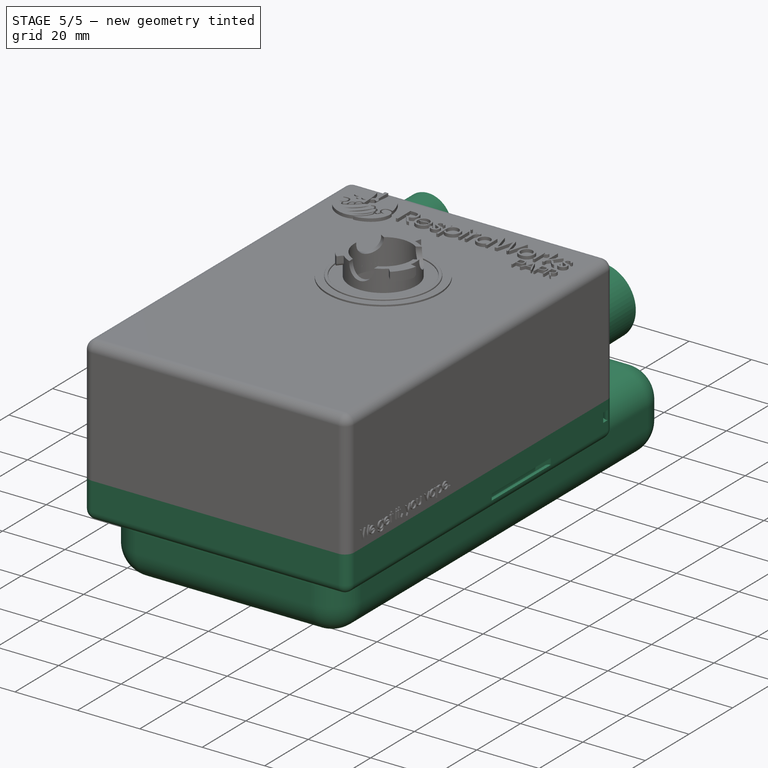
[diagram: stage 5 of 5 — iso view after this stage's code; geometry added in this stage tinted green]
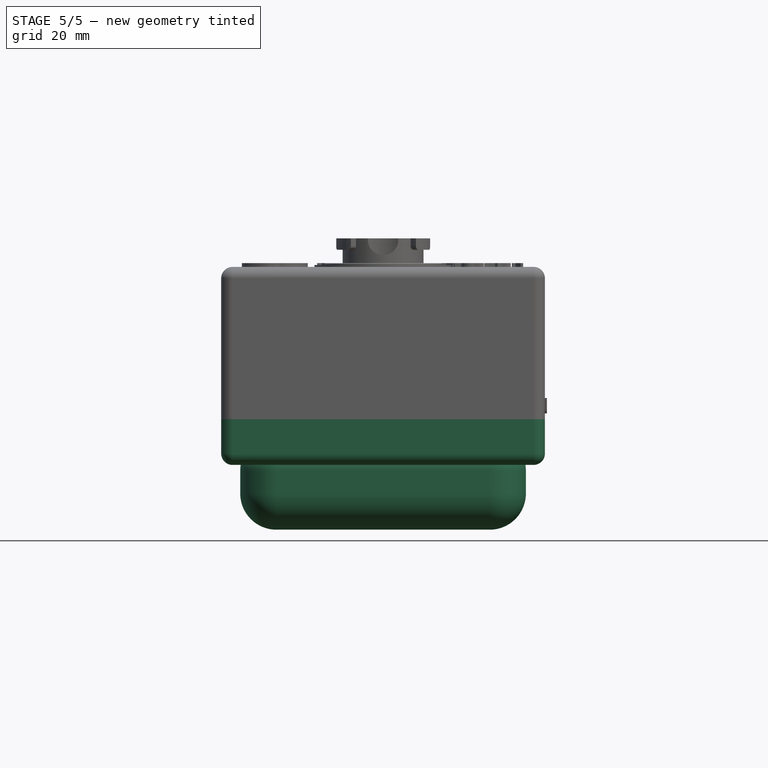
[diagram: stage 5 of 5 — front view after this stage's code; geometry added in this stage tinted green]
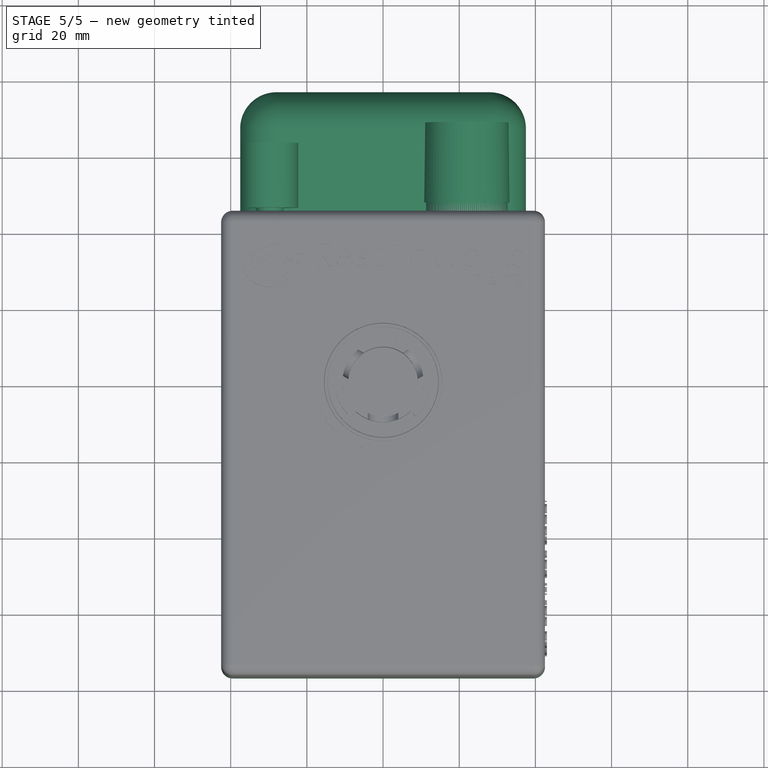
[diagram: stage 5 of 5 — top view after this stage's code; geometry added in this stage tinted green]
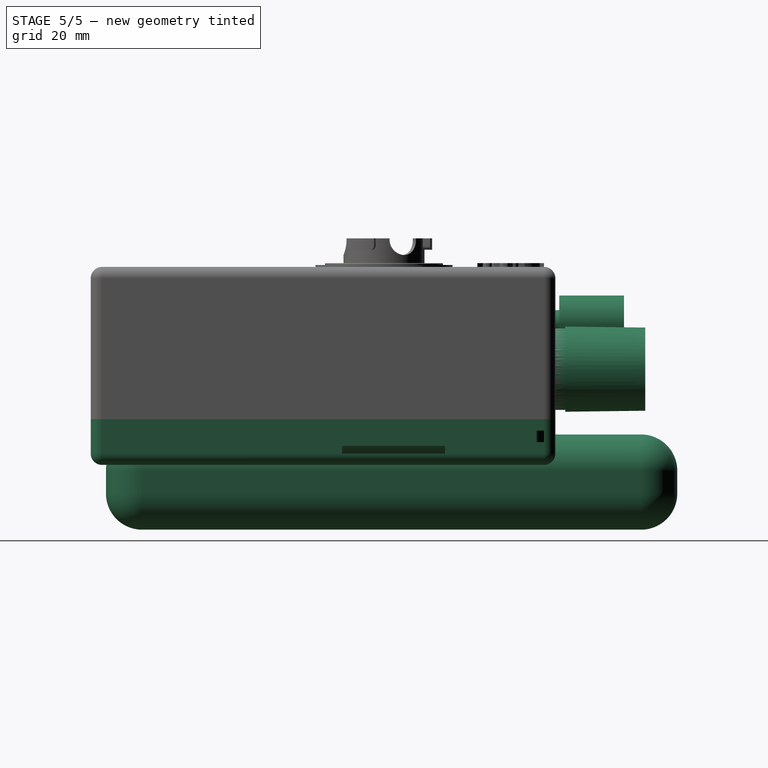
[diagram: stage 5 of 5 — right view after this stage's code; geometry added in this stage tinted green]
FEATURE [Part::Cylinder] Cylinder019  label="HousingOutlet"
  Angle = 360
  AttacherType = Attacher::AttachEngine3D
  Height = 40
  Radius = 10.7
FEATURE [Part::Cylinder] Cylinder005  label="nOutletTube"
  Angle = 360
  AttacherType = Attacher::AttachEngine3D
  Height = 40
  Radius = 6.7
FEATURE [Part::Cone] Cone001  label="22mmTaper"
  Angle = 360
  AttacherType = Attacher::AttachEngine3D
  Height = 21
  Placement = pos=(0,0,19) rot=(0,0,1;0rad)
  Radius1 = 11.19
  Radius2 = 10.92
FEATURE [Part::Box] Box018  label="BatteryBackBlock"
  AttacherType = Attacher::AttachEngine3D
  Height = 12
  Length = 85
  Placement = pos=(-42.5,-77,-12) rot=(0,0,1;0rad)
  Width = 122
FEATURE [Part::Fillet] Fillet016  label="BatteryBackSmooth"
  Base = -> Box018
  Edges = 8 edges r=3: [Edge1,Edge3,Edge4,Edge5,Edge7,Edge8,Edge9,Edge11]
FEATURE [Part::Box] Box019  label="Cube002"
  AttacherType = Attacher::AttachEngine3D
  Height = 25
  Length = 75
  Placement = pos=(-37.5,-73,-29) rot=(0,0,1;0rad)
  Width = 150
FEATURE [Part::Fillet] Fillet017  label="BatteryPocket001"
  Base = -> Box019
  Edges = 12 edges r=9.5: [Edge1,Edge2,Edge3,Edge4,Edge5,Edge6,Edge7,Edge8,Edge9,Edge10,Edge11,Edge12]
FEATURE [Part::Box] Box022  label="Cube003"
  AttacherType = Attacher::AttachEngine3D
  Height = 25
  Length = 75
  Placement = pos=(-37.5,-73,-29) rot=(0,0,1;0rad)
  Width = 150
FEATURE [Part::Fillet] Fillet018  label="Visual-Battery"
  Base = -> Box022
  Edges = 12 edges r=9.5: [Edge1,Edge2,Edge3,Edge4,Edge5,Edge6,Edge7,Edge8,Edge9,Edge10,Edge11,Edge12]
FEATURE [Part::Cylinder] Cylinder047  label="PotShaft001"
  Angle = 360
  AttacherType = Attacher::AttachEngine3D
  Height = 10
  Placement = pos=(0,55,25) rot=(1,0,0;1.5708rad)
  Radius = 3.65
FEATURE [Part::Box] Box023  label="PotBody001"
  AttacherType = Attacher::AttachEngine3D
  Height = 36
  Length = 10.5
  Placement = pos=(-5.25,0,0) rot=(0,0,1;0rad)
  Width = 45
FEATURE [Part::MultiFuse] Fusion041  label="Visual-Potentiometer"
  Placement = pos=(-29.75,-2,0) rot=(0,0,1;0rad)
  Shapes = -> [Cylinder047,Box023]
FEATURE [Part::Cylinder] Cylinder048  label="Visual-Knob"
  Angle = 360
  AttacherType = Attacher::AttachEngine3D
  Height = 17
  Placement = pos=(-29.75,46,25) rot=(-1,0,0;1.5708rad)
  Radius = 7.5
FEATURE [Part::Cylinder] Cylinder052  label="BatteryBackScrewHole1"
  Angle = 360
  AttacherType = Attacher::AttachEngine3D
  Height = 12
  Placement = pos=(0,41.5,0) rot=(0,1,0;3.14159rad)
  Radius = 1.85
FEATURE [Part::Cylinder] Cylinder053  label="BatteryBackScrewHole2"
  Angle = 360
  AttacherType = Attacher::AttachEngine3D
  Height = 12
  Placement = pos=(-34,-25,0) rot=(0,1,0;3.14159rad)
  Radius = 1.85
FEATURE [Part::Cylinder] Cylinder054  label="BatteryBackScrewHole3"
  Angle = 360
  AttacherType = Attacher::AttachEngine3D
  Height = 12
  Placement = pos=(34,-25,0) rot=(0,1,0;3.14159rad)
  Radius = 1.85
FEATURE [Part::Cylinder] Cylinder055  label="BatteryBackScrewCountersink1"
  Angle = 360
  AttacherType = Attacher::AttachEngine3D
  Height = 12
  Placement = pos=(0,41.5,-1.5) rot=(0,1,0;3.14159rad)
  Radius = 3.5
FEATURE [Part::Cylinder] Cylinder056  label="BatteryBackScrewCountersink2"
  Angle = 360
  AttacherType = Attacher::AttachEngine3D
  Height = 12
  Placement = pos=(-34,-25,-1.5) rot=(0,1,0;3.14159rad)
  Radius = 3.5
FEATURE [Part::Cylinder] Cylinder057  label="BatteryBackScrewCountersink3"
  Angle = 360
  AttacherType = Attacher::AttachEngine3D
  Height = 12
  Placement = pos=(34,-25,-1.5) rot=(0,1,0;3.14159rad)
  Radius = 3.5
FEATURE [Part::MultiFuse] Fusion048  label="BatteryMountingPockets"
  Shapes = -> [Cylinder052,Cylinder057,Cylinder055,Cylinder053,Cylinder054,Cylinder056]
FEATURE [Sketcher::SketchObject] Sketch007  label="AttachPocketProfile"
  sketch-geometry (4):
    g0: ArcOfCircle CenterX=0 CenterY=0 CenterZ=0 NormalX=0 NormalY=0 NormalZ=1 AngleXU=0 Radius=3 StartAngle=3.14159 EndAngle=4.71239
    g1: ArcOfCircle CenterX=0 CenterY=0 CenterZ=0 NormalX=0 NormalY=0 NormalZ=1 AngleXU=0 Radius=5 StartAngle=3.14159 EndAngle=4.71239
    g2: LineSegment StartX=-5 StartY=6e-16 StartZ=0 EndX=-3 EndY=4e-16 EndZ=0
    g3: LineSegment StartX=-6e-16 StartY=-3 StartZ=0 EndX=-9e-16 EndY=-5 EndZ=0
  constraints (12):
    c: PointOnObject(g0,g-1)
    c: PointOnObject(g0,g-2)
    c: Coincident(g0,g-1)
    c: Radius(g0) = 3
    c: Coincident(g1,g0)
    c: PointOnObject(g1,g-1)
    c: PointOnObject(g1,g-2)
    c: Radius(g1) = 5
    c: Coincident(g2,g0)
    c: Coincident(g3,g0)
    c: Coincident(g3,g1)
    c: Coincident(g2,g1)
FEATURE [Part::Extrusion] Extrude032  label="BatteryBackAttachPocket"
  Base = -> Sketch007
  Dir = (0,0,1)
  DirMode = 2
  FaceMakerClass = Part::FaceMakerBullseye
  LengthFwd = 3
  LengthRev = 0
  Placement = pos=(42.5,45,-6) rot=(0,0,1;0rad)
  Solid = true
  Symmetric = false
FEATURE [Part::Mirroring] Part__Mirroring004  label="BatteryBackAttachPocketLeft"
  Base = (0,0,0)
  Normal = (1,0,0)
  Source = -> Extrude032
FEATURE [Sketcher::SketchObject] Sketch008  label="AttachPocketProfile001"
  sketch-geometry (4):
    g0: ArcOfCircle CenterX=0 CenterY=0 CenterZ=0 NormalX=0 NormalY=0 NormalZ=1 AngleXU=0 Radius=3 StartAngle=3.14159 EndAngle=4.71239
    g1: ArcOfCircle CenterX=0 CenterY=0 CenterZ=0 NormalX=0 NormalY=0 NormalZ=1 AngleXU=0 Radius=5 StartAngle=3.14159 EndAngle=4.71239
    g2: LineSegment StartX=-5 StartY=6e-16 StartZ=0 EndX=-3 EndY=4e-16 EndZ=0
    g3: LineSegment StartX=-6e-16 StartY=-3 StartZ=0 EndX=-9e-16 EndY=-5 EndZ=0
  constraints (12):
    c: PointOnObject(g0,g-1)
    c: PointOnObject(g0,g-2)
    c: Coincident(g0,g-1)
    c: Radius(g0) = 3
    c: Coincident(g1,g0)
    c: PointOnObject(g1,g-1)
    c: PointOnObject(g1,g-2)
    c: Radius(g1) = 5
    c: Coincident(g2,g0)
    c: Coincident(g3,g0)
    c: Coincident(g3,g1)
    c: Coincident(g2,g1)
FEATURE [Part::Extrusion] Extrude033  label="BatteryBackAttachPocketRight"
  Base = -> Sketch008
  Dir = (0,0,1)
  DirMode = 2
  FaceMakerClass = Part::FaceMakerBullseye
  LengthFwd = 3
  LengthRev = 0
  Placement = pos=(42.5,45,-6) rot=(0,0,1;0rad)
  Solid = true
  Symmetric = false
FEATURE [Sketcher::SketchObject] Sketch009  label="StrapSlotProfile"
  Placement = pos=(0,0,0) rot=(1,0,0;1.5708rad)
  sketch-geometry (4):
    g0: ArcOfCircle CenterX=0 CenterY=0 CenterZ=0 NormalX=0 NormalY=0 NormalZ=1 AngleXU=0 Radius=3 StartAngle=3.14159 EndAngle=4.71239
    g1: ArcOfCircle CenterX=0 CenterY=0 CenterZ=0 NormalX=0 NormalY=0 NormalZ=1 AngleXU=0 Radius=5 StartAngle=3.14159 EndAngle=4.71239
    g2: LineSegment StartX=-5 StartY=6e-16 StartZ=0 EndX=-3 EndY=4e-16 EndZ=0
    g3: LineSegment StartX=-6e-16 StartY=-3 StartZ=0 EndX=-9e-16 EndY=-5 EndZ=0
  constraints (12):
    c: PointOnObject(g0,g-1)
    c: PointOnObject(g0,g-2)
    c: Coincident(g0,g-1)
    c: Radius(g0) = 3
    c: Coincident(g1,g0)
    c: PointOnObject(g1,g-1)
    c: PointOnObject(g1,g-2)
    c: Radius(g1) = 5
    c: Coincident(g2,g0)
    c: Coincident(g3,g0)
    c: Coincident(g3,g1)
    c: Coincident(g2,g1)
FEATURE [Part::Extrusion] Extrude034  label="BatteryBackStrapPocket"
  Base = -> Sketch009
  Dir = (0,1,0)
  DirMode = 0
  FaceMakerClass = Part::FaceMakerBullseye
  LengthFwd = 27
  LengthRev = 0
  Placement = pos=(42.5,-11,-12) rot=(0,1,0;1.5708rad)
  Solid = true
  Symmetric = false
FEATURE [Part::Mirroring] Part__Mirroring005  label="BatteryBackStrapPocketRight"
  Base = (0,0,0)
  Normal = (1,0,0)
  Source = -> Extrude034
FEATURE [Sketcher::SketchObject] Sketch010  label="StrapSlotProfile001"
  Placement = pos=(0,0,0) rot=(1,0,0;1.5708rad)
  sketch-geometry (4):
    g0: ArcOfCircle CenterX=0 CenterY=0 CenterZ=0 NormalX=0 NormalY=0 NormalZ=1 AngleXU=0 Radius=3 StartAngle=3.14159 EndAngle=4.71239
    g1: ArcOfCircle CenterX=0 CenterY=0 CenterZ=0 NormalX=0 NormalY=0 NormalZ=1 AngleXU=0 Radius=5 StartAngle=3.14159 EndAngle=4.71239
    g2: LineSegment StartX=-5 StartY=6e-16 StartZ=0 EndX=-3 EndY=4e-16 EndZ=0
    g3: LineSegment StartX=-6e-16 StartY=-3 StartZ=0 EndX=-9e-16 EndY=-5 EndZ=0
  constraints (12):
    c: PointOnObject(g0,g-1)
    c: PointOnObject(g0,g-2)
    c: Coincident(g0,g-1)
    c: Radius(g0) = 3
    c: Coincident(g1,g0)
    c: PointOnObject(g1,g-1)
    c: PointOnObject(g1,g-2)
    c: Radius(g1) = 5
    c: Coincident(g2,g0)
    c: Coincident(g3,g0)
    c: Coincident(g3,g1)
    c: Coincident(g2,g1)
FEATURE [Part::Extrusion] Extrude035  label="BatteryBackStrapPocketLeft"
  Base = -> Sketch010
  Dir = (0,1,0)
  DirMode = 0
  FaceMakerClass = Part::FaceMakerBullseye
  LengthFwd = 27
  LengthRev = 0
  Placement = pos=(42.5,-11,-12) rot=(0,1,0;1.5708rad)
  Solid = true
  Symmetric = false
FEATURE [Part::MultiFuse] Fusion049  label="BatteryBackCombinedPockets"
  Shapes = -> [Fillet017,Part__Mirroring004,Extrude033,Fusion048,Extrude035,Part__Mirroring005]
FEATURE [Part::Cut] Cut013  label="TopLevelPart-BattteryBack"
  Base = -> Fillet016
  Tool = -> Fusion049
FEATURE [Part::MultiFuse] Fusion054  label="pOutletExtension"
  Shapes = -> [Cone001,Cylinder019]
FEATURE [Part::MultiFuse] Fusion  label="nOutletExtension"
  Shapes = -> [Cylinder060,Cut,Cylinder,Cylinder005]
FEATURE [Part::Cut] Cut017  label="TopLevelPart-OutletAdapter"
  Base = -> Fusion054
  Placement = pos=(22,28.6,13.15) rot=(-1,0,0;1.5708rad)
  Tool = -> Fusion
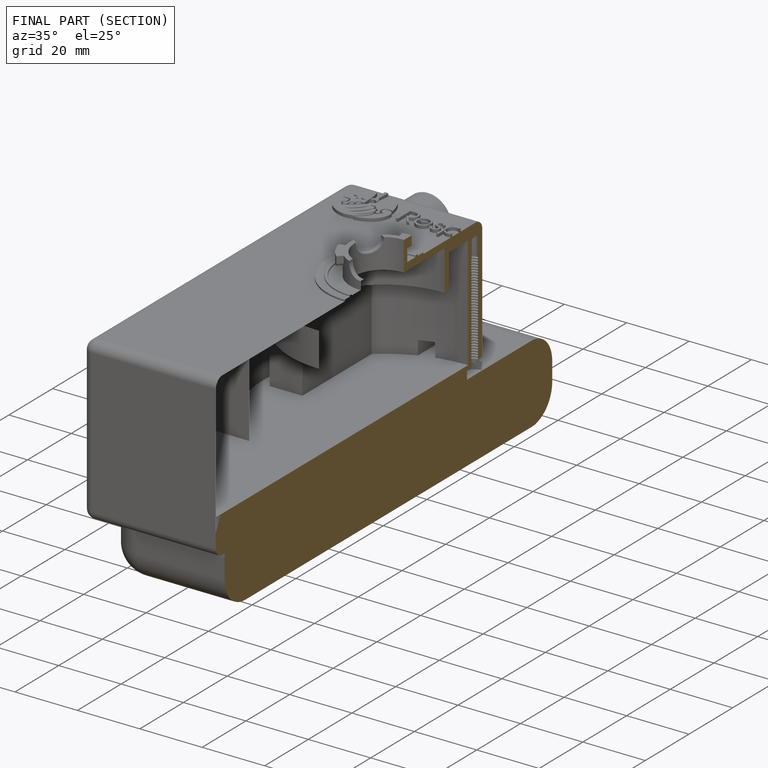
[diagram: finished part — half-section view (interior)]
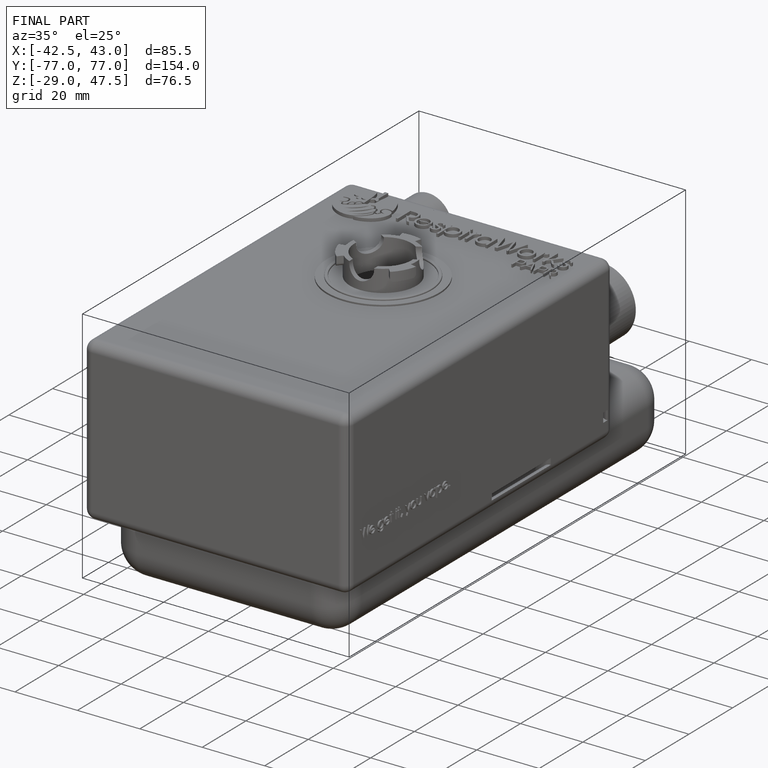
[diagram: finished part — iso view with bounding-box wireframe]
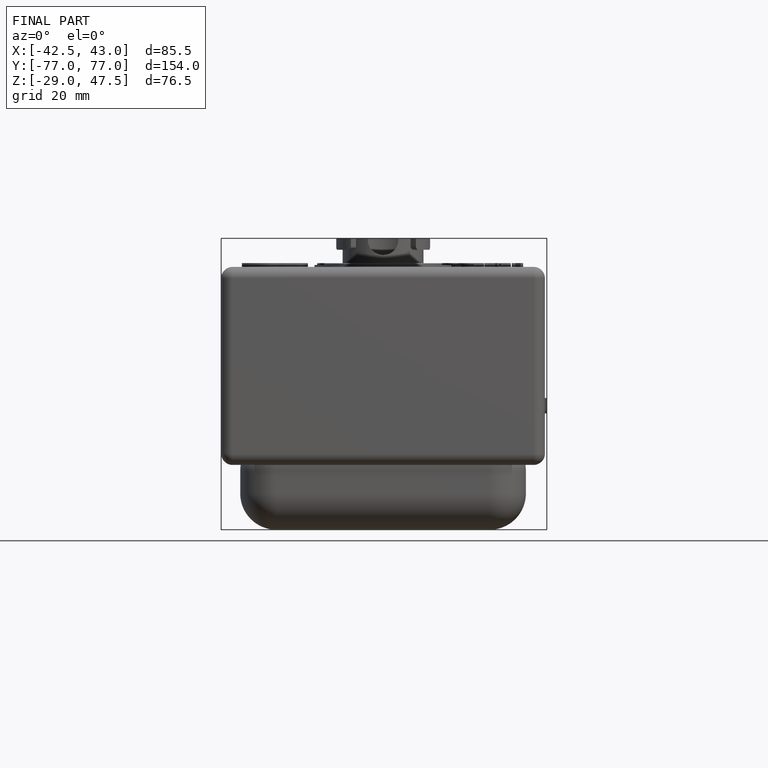
[diagram: finished part — front view with bounding-box wireframe]
